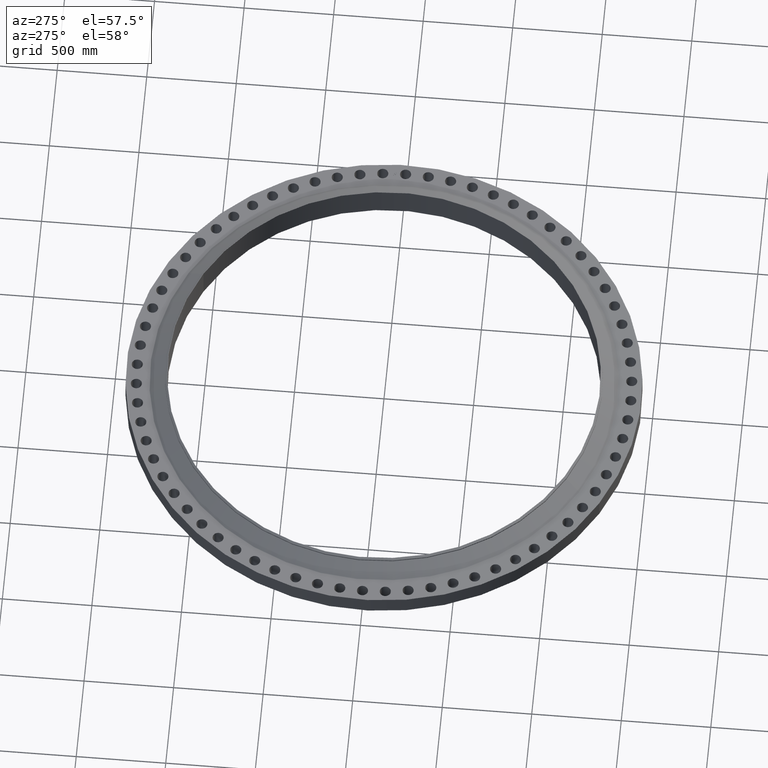
[diagram: clean part render]
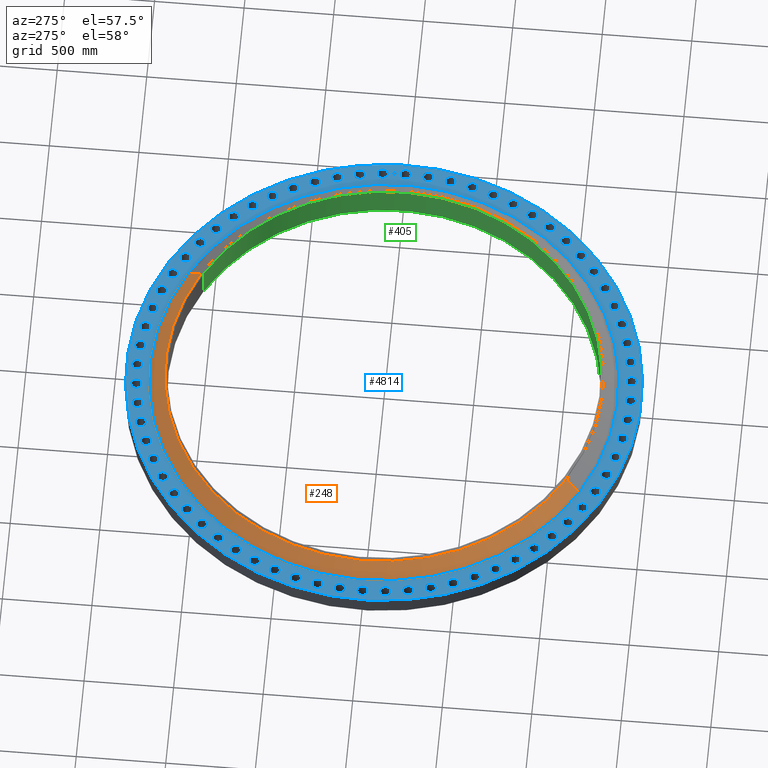
[diagram: same view with three faces highlighted in distinct colors, each labeled with its STEP entity id]
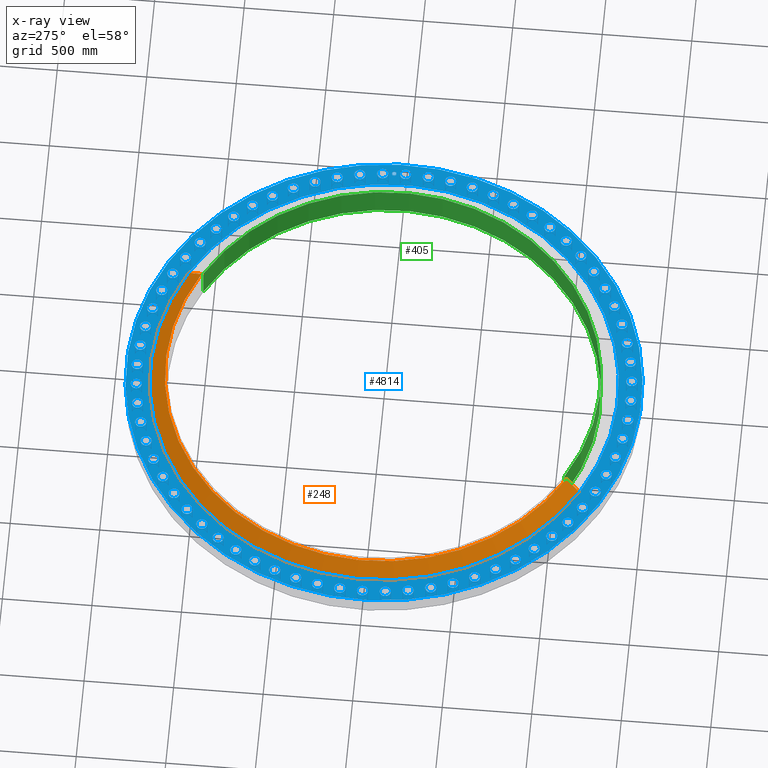
[diagram: x-ray of the same camera — body ghosted, the three highlighted faces saturated]
A machine part, auxiliary view with three faces highlighted in distinct colors.
The next image is the same camera in x-ray (body ghosted, the three faces saturated) — at least one of them is partly hidden behind the body in this view.
Their STEP definitions:

[orange] entity #248 — the highlighted conical surface has half-angle 54.268 deg.
#196=AXIS2_PLACEMENT_3D('Circle Axis2P3D',#194,#195,$) ;
#209=AXIS2_PLACEMENT_3D('Cone Axis2P3D',#206,#207,#208) ;
#239=AXIS2_PLACEMENT_3D('Circle Axis2P3D',#237,#238,$) ;
#167=CARTESIAN_POINT('Vertex',(24.5991253952,45.0283970009,4.29706151286)) ;
#174=CARTESIAN_POINT('Vertex',(-24.5991253952,-45.0283970009,4.29706151286)) ;
#194=CARTESIAN_POINT('Axis2P3D Location',(0.,0.,4.29706151286)) ;
#206=CARTESIAN_POINT('Axis2P3D Location',(0.,0.,6.67807397035)) ;
#211=CARTESIAN_POINT('Line Origine',(23.8057756242,43.5761799859,5.4875677416)) ;
#215=CARTESIAN_POINT('Vertex',(23.0124258531,42.1239629709,6.67807397035)) ;
#222=CARTESIAN_POINT('Vertex',(-23.0124258531,-42.1239629709,6.67807397035)) ;
#225=CARTESIAN_POINT('Line Origine',(-23.8057756242,-43.5761799859,5.4875677416)) ;
#237=CARTESIAN_POINT('Axis2P3D Location',(0.,0.,6.67807397035)) ;
#195=DIRECTION('Axis2P3D Direction',(0.,0.,-0.0393700787402)) ;
#207=DIRECTION('Axis2P3D Direction',(0.,0.,-0.0393700787402)) ;
#208=DIRECTION('Axis2P3D XDirection',(-0.0188750212049,-0.0345504945626,0.)) ;
#212=DIRECTION('Vector Direction',(0.0153218729934,0.028046500388,-0.0229921100373)) ;
#226=DIRECTION('Vector Direction',(-0.0153218729934,-0.028046500388,-0.0229921100373)) ;
#238=DIRECTION('Axis2P3D Direction',(0.,0.,-0.0393700787402)) ;
#213=VECTOR('Line Direction',#212,0.0393700787402) ;
#227=VECTOR('Line Direction',#226,0.0393700787402) ;
#243=ORIENTED_EDGE('',*,*,#198,.F.) ;
#244=ORIENTED_EDGE('',*,*,#229,.T.) ;
#245=ORIENTED_EDGE('',*,*,#241,.T.) ;
#246=ORIENTED_EDGE('',*,*,#217,.F.) ;
#248=ADVANCED_FACE('PartBody',(#247),#210,.T.) ;
#197=CIRCLE('generated circle',#196,51.3095849396) ;
#240=CIRCLE('generated circle',#239,48.0000000002) ;
#210=CONICAL_SURFACE('Cone',#209,48.0000000002,0.947149215535) ;
#198=EDGE_CURVE('',#175,#168,#197,.T.) ;
#217=EDGE_CURVE('',#168,#216,#214,.F.) ;
#229=EDGE_CURVE('',#175,#223,#228,.F.) ;
#241=EDGE_CURVE('',#223,#216,#240,.T.) ;
#242=EDGE_LOOP('',(#243,#244,#245,#246)) ;
#247=FACE_OUTER_BOUND('',#242,.T.) ;
#214=LINE('Line',#211,#213) ;
#228=LINE('Line',#225,#227) ;
#168=VERTEX_POINT('',#167) ;
#175=VERTEX_POINT('',#174) ;
#216=VERTEX_POINT('',#215) ;
#223=VERTEX_POINT('',#222) ;

[blue] entity #4814 — the highlighted planar face has unit normal (0, 0, -1).
#65=AXIS2_PLACEMENT_3D('Circle Axis2P3D',#63,#64,$) ;
#82=AXIS2_PLACEMENT_3D('Circle Axis2P3D',#80,#81,$) ;
#115=AXIS2_PLACEMENT_3D('Circle Axis2P3D',#113,#114,$) ;
#139=AXIS2_PLACEMENT_3D('Circle Axis2P3D',#137,#138,$) ;
#156=AXIS2_PLACEMENT_3D('Circle Axis2P3D',#154,#155,$) ;
#191=AXIS2_PLACEMENT_3D('Circle Axis2P3D',#189,#190,$) ;
#1651=AXIS2_PLACEMENT_3D('Circle Axis2P3D',#1649,#1650,$) ;
#1663=AXIS2_PLACEMENT_3D('Circle Axis2P3D',#1661,#1662,$) ;
#1694=AXIS2_PLACEMENT_3D('Circle Axis2P3D',#1692,#1693,$) ;
#1706=AXIS2_PLACEMENT_3D('Circle Axis2P3D',#1704,#1705,$) ;
#1737=AXIS2_PLACEMENT_3D('Circle Axis2P3D',#1735,#1736,$) ;
#1749=AXIS2_PLACEMENT_3D('Circle Axis2P3D',#1747,#1748,$) ;
#1780=AXIS2_PLACEMENT_3D('Circle Axis2P3D',#1778,#1779,$) ;
#1792=AXIS2_PLACEMENT_3D('Circle Axis2P3D',#1790,#1791,$) ;
#1823=AXIS2_PLACEMENT_3D('Circle Axis2P3D',#1821,#1822,$) ;
#1835=AXIS2_PLACEMENT_3D('Circle Axis2P3D',#1833,#1834,$) ;
#1866=AXIS2_PLACEMENT_3D('Circle Axis2P3D',#1864,#1865,$) ;
#1878=AXIS2_PLACEMENT_3D('Circle Axis2P3D',#1876,#1877,$) ;
#1909=AXIS2_PLACEMENT_3D('Circle Axis2P3D',#1907,#1908,$) ;
#1921=AXIS2_PLACEMENT_3D('Circle Axis2P3D',#1919,#1920,$) ;
#1952=AXIS2_PLACEMENT_3D('Circle Axis2P3D',#1950,#1951,$) ;
#1964=AXIS2_PLACEMENT_3D('Circle Axis2P3D',#1962,#1963,$) ;
#1995=AXIS2_PLACEMENT_3D('Circle Axis2P3D',#1993,#1994,$) ;
#2007=AXIS2_PLACEMENT_3D('Circle Axis2P3D',#2005,#2006,$) ;
#2038=AXIS2_PLACEMENT_3D('Circle Axis2P3D',#2036,#2037,$) ;
#2050=AXIS2_PLACEMENT_3D('Circle Axis2P3D',#2048,#2049,$) ;
#2081=AXIS2_PLACEMENT_3D('Circle Axis2P3D',#2079,#2080,$) ;
#2093=AXIS2_PLACEMENT_3D('Circle Axis2P3D',#2091,#2092,$) ;
#2124=AXIS2_PLACEMENT_3D('Circle Axis2P3D',#2122,#2123,$) ;
#2136=AXIS2_PLACEMENT_3D('Circle Axis2P3D',#2134,#2135,$) ;
#2167=AXIS2_PLACEMENT_3D('Circle Axis2P3D',#2165,#2166,$) ;
#2179=AXIS2_PLACEMENT_3D('Circle Axis2P3D',#2177,#2178,$) ;
#2210=AXIS2_PLACEMENT_3D('Circle Axis2P3D',#2208,#2209,$) ;
#2222=AXIS2_PLACEMENT_3D('Circle Axis2P3D',#2220,#2221,$) ;
#2253=AXIS2_PLACEMENT_3D('Circle Axis2P3D',#2251,#2252,$) ;
#2265=AXIS2_PLACEMENT_3D('Circle Axis2P3D',#2263,#2264,$) ;
#2296=AXIS2_PLACEMENT_3D('Circle Axis2P3D',#2294,#2295,$) ;
#2308=AXIS2_PLACEMENT_3D('Circle Axis2P3D',#2306,#2307,$) ;
#2339=AXIS2_PLACEMENT_3D('Circle Axis2P3D',#2337,#2338,$) ;
#2351=AXIS2_PLACEMENT_3D('Circle Axis2P3D',#2349,#2350,$) ;
#2382=AXIS2_PLACEMENT_3D('Circle Axis2P3D',#2380,#2381,$) ;
#2394=AXIS2_PLACEMENT_3D('Circle Axis2P3D',#2392,#2393,$) ;
#2425=AXIS2_PLACEMENT_3D('Circle Axis2P3D',#2423,#2424,$) ;
#2437=AXIS2_PLACEMENT_3D('Circle Axis2P3D',#2435,#2436,$) ;
#2468=AXIS2_PLACEMENT_3D('Circle Axis2P3D',#2466,#2467,$) ;
#2480=AXIS2_PLACEMENT_3D('Circle Axis2P3D',#2478,#2479,$) ;
#2511=AXIS2_PLACEMENT_3D('Circle Axis2P3D',#2509,#2510,$) ;
#2523=AXIS2_PLACEMENT_3D('Circle Axis2P3D',#2521,#2522,$) ;
#2554=AXIS2_PLACEMENT_3D('Circle Axis2P3D',#2552,#2553,$) ;
#2566=AXIS2_PLACEMENT_3D('Circle Axis2P3D',#2564,#2565,$) ;
#2597=AXIS2_PLACEMENT_3D('Circle Axis2P3D',#2595,#2596,$) ;
#2609=AXIS2_PLACEMENT_3D('Circle Axis2P3D',#2607,#2608,$) ;
#2640=AXIS2_PLACEMENT_3D('Circle Axis2P3D',#2638,#2639,$) ;
#2652=AXIS2_PLACEMENT_3D('Circle Axis2P3D',#2650,#2651,$) ;
#2683=AXIS2_PLACEMENT_3D('Circle Axis2P3D',#2681,#2682,$) ;
#2695=AXIS2_PLACEMENT_3D('Circle Axis2P3D',#2693,#2694,$) ;
#2726=AXIS2_PLACEMENT_3D('Circle Axis2P3D',#2724,#2725,$) ;
#2738=AXIS2_PLACEMENT_3D('Circle Axis2P3D',#2736,#2737,$) ;
#2769=AXIS2_PLACEMENT_3D('Circle Axis2P3D',#2767,#2768,$) ;
#2781=AXIS2_PLACEMENT_3D('Circle Axis2P3D',#2779,#2780,$) ;
#2812=AXIS2_PLACEMENT_3D('Circle Axis2P3D',#2810,#2811,$) ;
#2824=AXIS2_PLACEMENT_3D('Circle Axis2P3D',#2822,#2823,$) ;
#2855=AXIS2_PLACEMENT_3D('Circle Axis2P3D',#2853,#2854,$) ;
#2867=AXIS2_PLACEMENT_3D('Circle Axis2P3D',#2865,#2866,$) ;
#2898=AXIS2_PLACEMENT_3D('Circle Axis2P3D',#2896,#2897,$) ;
#2910=AXIS2_PLACEMENT_3D('Circle Axis2P3D',#2908,#2909,$) ;
#2941=AXIS2_PLACEMENT_3D('Circle Axis2P3D',#2939,#2940,$) ;
#2953=AXIS2_PLACEMENT_3D('Circle Axis2P3D',#2951,#2952,$) ;
#2984=AXIS2_PLACEMENT_3D('Circle Axis2P3D',#2982,#2983,$) ;
#2996=AXIS2_PLACEMENT_3D('Circle Axis2P3D',#2994,#2995,$) ;
#3027=AXIS2_PLACEMENT_3D('Circle Axis2P3D',#3025,#3026,$) ;
#3039=AXIS2_PLACEMENT_3D('Circle Axis2P3D',#3037,#3038,$) ;
#3070=AXIS2_PLACEMENT_3D('Circle Axis2P3D',#3068,#3069,$) ;
#3082=AXIS2_PLACEMENT_3D('Circle Axis2P3D',#3080,#3081,$) ;
#3113=AXIS2_PLACEMENT_3D('Circle Axis2P3D',#3111,#3112,$) ;
#3125=AXIS2_PLACEMENT_3D('Circle Axis2P3D',#3123,#3124,$) ;
#3156=AXIS2_PLACEMENT_3D('Circle Axis2P3D',#3154,#3155,$) ;
#3168=AXIS2_PLACEMENT_3D('Circle Axis2P3D',#3166,#3167,$) ;
#3199=AXIS2_PLACEMENT_3D('Circle Axis2P3D',#3197,#3198,$) ;
#3211=AXIS2_PLACEMENT_3D('Circle Axis2P3D',#3209,#3210,$) ;
#3242=AXIS2_PLACEMENT_3D('Circle Axis2P3D',#3240,#3241,$) ;
#3254=AXIS2_PLACEMENT_3D('Circle Axis2P3D',#3252,#3253,$) ;
#3285=AXIS2_PLACEMENT_3D('Circle Axis2P3D',#3283,#3284,$) ;
#3297=AXIS2_PLACEMENT_3D('Circle Axis2P3D',#3295,#3296,$) ;
#3328=AXIS2_PLACEMENT_3D('Circle Axis2P3D',#3326,#3327,$) ;
#3340=AXIS2_PLACEMENT_3D('Circle Axis2P3D',#3338,#3339,$) ;
#3371=AXIS2_PLACEMENT_3D('Circle Axis2P3D',#3369,#3370,$) ;
#3383=AXIS2_PLACEMENT_3D('Circle Axis2P3D',#3381,#3382,$) ;
#3414=AXIS2_PLACEMENT_3D('Circle Axis2P3D',#3412,#3413,$) ;
#3426=AXIS2_PLACEMENT_3D('Circle Axis2P3D',#3424,#3425,$) ;
#3457=AXIS2_PLACEMENT_3D('Circle Axis2P3D',#3455,#3456,$) ;
#3469=AXIS2_PLACEMENT_3D('Circle Axis2P3D',#3467,#3468,$) ;
#3500=AXIS2_PLACEMENT_3D('Circle Axis2P3D',#3498,#3499,$) ;
#3512=AXIS2_PLACEMENT_3D('Circle Axis2P3D',#3510,#3511,$) ;
#3543=AXIS2_PLACEMENT_3D('Circle Axis2P3D',#3541,#3542,$) ;
#3555=AXIS2_PLACEMENT_3D('Circle Axis2P3D',#3553,#3554,$) ;
#3586=AXIS2_PLACEMENT_3D('Circle Axis2P3D',#3584,#3585,$) ;
#3598=AXIS2_PLACEMENT_3D('Circle Axis2P3D',#3596,#3597,$) ;
#3629=AXIS2_PLACEMENT_3D('Circle Axis2P3D',#3627,#3628,$) ;
#3641=AXIS2_PLACEMENT_3D('Circle Axis2P3D',#3639,#3640,$) ;
#3672=AXIS2_PLACEMENT_3D('Circle Axis2P3D',#3670,#3671,$) ;
#3684=AXIS2_PLACEMENT_3D('Circle Axis2P3D',#3682,#3683,$) ;
#3715=AXIS2_PLACEMENT_3D('Circle Axis2P3D',#3713,#3714,$) ;
#3727=AXIS2_PLACEMENT_3D('Circle Axis2P3D',#3725,#3726,$) ;
#3758=AXIS2_PLACEMENT_3D('Circle Axis2P3D',#3756,#3757,$) ;
#3770=AXIS2_PLACEMENT_3D('Circle Axis2P3D',#3768,#3769,$) ;
#3801=AXIS2_PLACEMENT_3D('Circle Axis2P3D',#3799,#3800,$) ;
#3813=AXIS2_PLACEMENT_3D('Circle Axis2P3D',#3811,#3812,$) ;
#3844=AXIS2_PLACEMENT_3D('Circle Axis2P3D',#3842,#3843,$) ;
#3856=AXIS2_PLACEMENT_3D('Circle Axis2P3D',#3854,#3855,$) ;
#3887=AXIS2_PLACEMENT_3D('Circle Axis2P3D',#3885,#3886,$) ;
#3899=AXIS2_PLACEMENT_3D('Circle Axis2P3D',#3897,#3898,$) ;
#3930=AXIS2_PLACEMENT_3D('Circle Axis2P3D',#3928,#3929,$) ;
#3942=AXIS2_PLACEMENT_3D('Circle Axis2P3D',#3940,#3941,$) ;
#3973=AXIS2_PLACEMENT_3D('Circle Axis2P3D',#3971,#3972,$) ;
#3985=AXIS2_PLACEMENT_3D('Circle Axis2P3D',#3983,#3984,$) ;
#4016=AXIS2_PLACEMENT_3D('Circle Axis2P3D',#4014,#4015,$) ;
#4028=AXIS2_PLACEMENT_3D('Circle Axis2P3D',#4026,#4027,$) ;
#4059=AXIS2_PLACEMENT_3D('Circle Axis2P3D',#4057,#4058,$) ;
#4071=AXIS2_PLACEMENT_3D('Circle Axis2P3D',#4069,#4070,$) ;
#4102=AXIS2_PLACEMENT_3D('Circle Axis2P3D',#4100,#4101,$) ;
#4114=AXIS2_PLACEMENT_3D('Circle Axis2P3D',#4112,#4113,$) ;
#4145=AXIS2_PLACEMENT_3D('Circle Axis2P3D',#4143,#4144,$) ;
#4157=AXIS2_PLACEMENT_3D('Circle Axis2P3D',#4155,#4156,$) ;
#4188=AXIS2_PLACEMENT_3D('Circle Axis2P3D',#4186,#4187,$) ;
#4200=AXIS2_PLACEMENT_3D('Circle Axis2P3D',#4198,#4199,$) ;
#4231=AXIS2_PLACEMENT_3D('Circle Axis2P3D',#4229,#4230,$) ;
#4243=AXIS2_PLACEMENT_3D('Circle Axis2P3D',#4241,#4242,$) ;
#4274=AXIS2_PLACEMENT_3D('Circle Axis2P3D',#4272,#4273,$) ;
#4286=AXIS2_PLACEMENT_3D('Circle Axis2P3D',#4284,#4285,$) ;
#4317=AXIS2_PLACEMENT_3D('Circle Axis2P3D',#4315,#4316,$) ;
#4329=AXIS2_PLACEMENT_3D('Circle Axis2P3D',#4327,#4328,$) ;
#4360=AXIS2_PLACEMENT_3D('Circle Axis2P3D',#4358,#4359,$) ;
#4372=AXIS2_PLACEMENT_3D('Circle Axis2P3D',#4370,#4371,$) ;
#4403=AXIS2_PLACEMENT_3D('Circle Axis2P3D',#4401,#4402,$) ;
#4415=AXIS2_PLACEMENT_3D('Circle Axis2P3D',#4413,#4414,$) ;
#4446=AXIS2_PLACEMENT_3D('Circle Axis2P3D',#4444,#4445,$) ;
#4458=AXIS2_PLACEMENT_3D('Circle Axis2P3D',#4456,#4457,$) ;
#4489=AXIS2_PLACEMENT_3D('Circle Axis2P3D',#4487,#4488,$) ;
#4501=AXIS2_PLACEMENT_3D('Circle Axis2P3D',#4499,#4500,$) ;
#4514=AXIS2_PLACEMENT_3D('Plane Axis2P3D',#4511,#4512,#4513) ;
#4798=AXIS2_PLACEMENT_3D('Circle Axis2P3D',#4796,#4797,$) ;
#4807=AXIS2_PLACEMENT_3D('Circle Axis2P3D',#4805,#4806,$) ;
#46=CARTESIAN_POINT('Vertex',(53.1793492747,0.584899157099,4.25000000002)) ;
#60=CARTESIAN_POINT('Vertex',(55.3206507257,-0.584899157099,4.25000000002)) ;
#63=CARTESIAN_POINT('Axis2P3D Location',(54.2500000002,0.,4.25000000002)) ;
#80=CARTESIAN_POINT('Axis2P3D Location',(54.2500000002,0.,4.25000000002)) ;
#110=CARTESIAN_POINT('Vertex',(-27.1474711236,-49.6931125672,4.25000000002)) ;
#113=CARTESIAN_POINT('Axis2P3D Location',(0.,0.,4.25000000002)) ;
#117=CARTESIAN_POINT('Vertex',(27.1474711236,49.6931125672,4.25000000002)) ;
#137=CARTESIAN_POINT('Axis2P3D Location',(0.,0.,4.25000000002)) ;
#154=CARTESIAN_POINT('Axis2P3D Location',(0.,0.,4.25000000002)) ;
#158=CARTESIAN_POINT('Vertex',(24.6691214753,45.156523966,4.25000000002)) ;
#160=CARTESIAN_POINT('Vertex',(-24.6691214753,-45.156523966,4.25000000002)) ;
#189=CARTESIAN_POINT('Axis2P3D Location',(0.,0.,4.25000000002)) ;
#1639=CARTESIAN_POINT('Vertex',(-53.0064632316,4.32436723449,4.25000000002)) ;
#1646=CARTESIAN_POINT('Vertex',(-55.0306948968,5.68674976732,4.25000000002)) ;
#1649=CARTESIAN_POINT('Axis2P3D Location',(-54.0185790642,5.0055585009,4.25000000002)) ;
#1661=CARTESIAN_POINT('Axis2P3D Location',(-54.0185790642,5.0055585009,4.25000000002)) ;
#1682=CARTESIAN_POINT('Vertex',(52.3813447338,-9.19673964957,4.25000000002)) ;
#1689=CARTESIAN_POINT('Vertex',(54.2712365823,-10.7400830336,4.25000000002)) ;
#1692=CARTESIAN_POINT('Axis2P3D Location',(53.3262906581,-9.96841134159,4.25000000002)) ;
#1704=CARTESIAN_POINT('Axis2P3D Location',(53.3262906581,-9.96841134159,4.25000000002)) ;
#1725=CARTESIAN_POINT('Vertex',(-52.3813447338,9.19673964957,4.25000000002)) ;
#1732=CARTESIAN_POINT('Vertex',(-54.2712365823,10.7400830336,4.25000000002)) ;
#1735=CARTESIAN_POINT('Axis2P3D Location',(-53.3262906581,9.96841134159,4.25000000002)) ;
#1747=CARTESIAN_POINT('Axis2P3D Location',(-53.3262906581,9.96841134159,4.25000000002)) ;
#1768=CARTESIAN_POINT('Vertex',(51.3093270719,-13.9906487246,4.25000000002)) ;
#1775=CARTESIAN_POINT('Vertex',(53.0487552128,-15.7017856983,4.25000000002)) ;
#1778=CARTESIAN_POINT('Axis2P3D Location',(52.1790411423,-14.8462172115,4.25000000002)) ;
#1790=CARTESIAN_POINT('Axis2P3D Location',(52.1790411423,-14.8462172115,4.25000000002)) ;
#1811=CARTESIAN_POINT('Vertex',(-51.3093270719,13.9906487246,4.25000000002)) ;
#1818=CARTESIAN_POINT('Vertex',(-53.0487552128,15.7017856983,4.25000000002)) ;
#1821=CARTESIAN_POINT('Axis2P3D Location',(-52.1790411423,14.8462172115,4.25000000002)) ;
#1833=CARTESIAN_POINT('Axis2P3D Location',(-52.1790411423,14.8462172115,4.25000000002)) ;
#1854=CARTESIAN_POINT('Vertex',(49.7995563225,-18.6651945177,4.25000000002)) ;
#1861=CARTESIAN_POINT('Vertex',(51.3736805683,-20.5295262637,4.25000000002)) ;
#1864=CARTESIAN_POINT('Axis2P3D Location',(50.5866184454,-19.5973603907,4.25000000002)) ;
#1876=CARTESIAN_POINT('Axis2P3D Location',(50.5866184454,-19.5973603907,4.25000000002)) ;
#1897=CARTESIAN_POINT('Vertex',(-49.7995563225,18.6651945177,4.25000000002)) ;
#1904=CARTESIAN_POINT('Vertex',(-51.3736805683,20.5295262637,4.25000000002)) ;
#1907=CARTESIAN_POINT('Axis2P3D Location',(-50.5866184454,19.5973603907,4.25000000002)) ;
#1919=CARTESIAN_POINT('Axis2P3D Location',(-50.5866184454,19.5973603907,4.25000000002)) ;
#1940=CARTESIAN_POINT('Vertex',(47.8649133174,-23.1804954524,4.25000000002)) ;
#1947=CARTESIAN_POINT('Vertex',(49.260303795,-25.1821161496,4.25000000002)) ;
#1950=CARTESIAN_POINT('Axis2P3D Location',(48.5626085562,-24.181305801,4.25000000002)) ;
#1962=CARTESIAN_POINT('Axis2P3D Location',(48.5626085562,-24.181305801,4.25000000002)) ;
#1983=CARTESIAN_POINT('Vertex',(-47.8649133174,23.1804954524,4.25000000002)) ;
#1990=CARTESIAN_POINT('Vertex',(-49.260303795,25.1821161496,4.25000000002)) ;
#1993=CARTESIAN_POINT('Axis2P3D Location',(-48.5626085562,24.181305801,4.25000000002)) ;
#2005=CARTESIAN_POINT('Axis2P3D Location',(-48.5626085562,24.181305801,4.25000000002)) ;
#2026=CARTESIAN_POINT('Vertex',(45.5219037486,-27.4980285731,4.25000000002)) ;
#2033=CARTESIAN_POINT('Vertex',(46.7266554784,-29.6198610994,4.25000000002)) ;
#2036=CARTESIAN_POINT('Axis2P3D Location',(46.1242796135,-28.5589448362,4.25000000002)) ;
#2048=CARTESIAN_POINT('Axis2P3D Location',(46.1242796135,-28.5589448362,4.25000000002)) ;
#2069=CARTESIAN_POINT('Vertex',(-45.5219037486,27.4980285731,4.25000000002)) ;
#2076=CARTESIAN_POINT('Vertex',(-46.7266554784,29.6198610994,4.25000000002)) ;
#2079=CARTESIAN_POINT('Axis2P3D Location',(-46.1242796135,28.5589448362,4.25000000002)) ;
#2091=CARTESIAN_POINT('Axis2P3D Location',(-46.1242796135,28.5589448362,4.25000000002)) ;
#2112=CARTESIAN_POINT('Vertex',(42.7905173476,-31.5809582095,4.25000000002)) ;
#2119=CARTESIAN_POINT('Vertex',(43.7943518126,-33.8048998379,4.25000000002)) ;
#2122=CARTESIAN_POINT('Axis2P3D Location',(43.2924345801,-32.6929290237,4.25000000002)) ;
#2134=CARTESIAN_POINT('Axis2P3D Location',(43.2924345801,-32.6929290237,4.25000000002)) ;
#2155=CARTESIAN_POINT('Vertex',(-42.7905173476,31.5809582095,4.25000000002)) ;
#2162=CARTESIAN_POINT('Vertex',(-43.7943518126,33.8048998379,4.25000000002)) ;
#2165=CARTESIAN_POINT('Axis2P3D Location',(-43.2924345801,32.6929290237,4.25000000002)) ;
#2177=CARTESIAN_POINT('Axis2P3D Location',(-43.2924345801,32.6929290237,4.25000000002)) ;
#2198=CARTESIAN_POINT('Vertex',(39.6940573401,-35.3944502456,4.25000000002)) ;
#2205=CARTESIAN_POINT('Vertex',(40.4884101787,-37.7015270904,4.25000000002)) ;
#2208=CARTESIAN_POINT('Axis2P3D Location',(40.0912337594,-36.547988668,4.25000000002)) ;
#2220=CARTESIAN_POINT('Axis2P3D Location',(40.0912337594,-36.547988668,4.25000000002)) ;
#2241=CARTESIAN_POINT('Vertex',(-39.6940573401,35.3944502456,4.25000000002)) ;
#2248=CARTESIAN_POINT('Vertex',(-40.4884101787,37.7015270904,4.25000000002)) ;
#2251=CARTESIAN_POINT('Axis2P3D Location',(-40.0912337594,36.547988668,4.25000000002)) ;
#2263=CARTESIAN_POINT('Axis2P3D Location',(-40.0912337594,36.547988668,4.25000000002)) ;
#2284=CARTESIAN_POINT('Vertex',(36.2589416311,-38.9059693119,4.25000000002)) ;
#2291=CARTESIAN_POINT('Vertex',(36.8370357048,-41.2764982069,4.25000000002)) ;
#2294=CARTESIAN_POINT('Axis2P3D Location',(36.547988668,-40.0912337594,4.25000000002)) ;
#2306=CARTESIAN_POINT('Axis2P3D Location',(36.547988668,-40.0912337594,4.25000000002)) ;
#2327=CARTESIAN_POINT('Vertex',(-36.2589416311,38.9059693119,4.25000000002)) ;
#2334=CARTESIAN_POINT('Vertex',(-36.8370357048,41.2764982069,4.25000000002)) ;
#2337=CARTESIAN_POINT('Axis2P3D Location',(-36.547988668,40.0912337594,4.25000000002)) ;
#2349=CARTESIAN_POINT('Axis2P3D Location',(-36.547988668,40.0912337594,4.25000000002)) ;
#2370=CARTESIAN_POINT('Vertex',(32.5144774166,-42.0855563659,4.25000000002)) ;
#2377=CARTESIAN_POINT('Vertex',(32.8713806308,-44.4993127943,4.25000000002)) ;
#2380=CARTESIAN_POINT('Axis2P3D Location',(32.6929290237,-43.2924345801,4.25000000002)) ;
#2392=CARTESIAN_POINT('Axis2P3D Location',(32.6929290237,-43.2924345801,4.25000000002)) ;
#2413=CARTESIAN_POINT('Vertex',(-32.5144774166,42.0855563659,4.25000000002)) ;
#2420=CARTESIAN_POINT('Vertex',(-32.8713806308,44.4993127943,4.25000000002)) ;
#2423=CARTESIAN_POINT('Axis2P3D Location',(-32.6929290237,43.2924345801,4.25000000002)) ;
#2435=CARTESIAN_POINT('Axis2P3D Location',(-32.6929290237,43.2924345801,4.25000000002)) ;
#2456=CARTESIAN_POINT('Vertex',(28.4926111451,-44.906084292,4.25000000002)) ;
#2463=CARTESIAN_POINT('Vertex',(28.6252785273,-47.3424749351,4.25000000002)) ;
#2466=CARTESIAN_POINT('Axis2P3D Location',(28.5589448362,-46.1242796135,4.25000000002)) ;
#2478=CARTESIAN_POINT('Axis2P3D Location',(28.5589448362,-46.1242796135,4.25000000002)) ;
#2499=CARTESIAN_POINT('Vertex',(-28.4926111451,44.906084292,4.25000000002)) ;
#2506=CARTESIAN_POINT('Vertex',(-28.6252785273,47.3424749351,4.25000000002)) ;
#2509=CARTESIAN_POINT('Axis2P3D Location',(-28.5589448362,46.1242796135,4.25000000002)) ;
#2521=CARTESIAN_POINT('Axis2P3D Location',(-28.5589448362,46.1242796135,4.25000000002)) ;
#2542=CARTESIAN_POINT('Vertex',(24.2276559616,-47.3434893403,4.25000000002)) ;
#2549=CARTESIAN_POINT('Vertex',(24.1349556404,-49.7817277721,4.25000000002)) ;
#2552=CARTESIAN_POINT('Axis2P3D Location',(24.181305801,-48.5626085562,4.25000000002)) ;
#2564=CARTESIAN_POINT('Axis2P3D Location',(24.181305801,-48.5626085562,4.25000000002)) ;
#2585=CARTESIAN_POINT('Vertex',(-24.2276559616,47.3434893403,4.25000000002)) ;
#2592=CARTESIAN_POINT('Vertex',(-24.1349556404,49.7817277721,4.25000000002)) ;
#2595=CARTESIAN_POINT('Axis2P3D Location',(-24.181305801,48.5626085562,4.25000000002)) ;
#2607=CARTESIAN_POINT('Axis2P3D Location',(-24.181305801,48.5626085562,4.25000000002)) ;
#2628=CARTESIAN_POINT('Vertex',(19.7559989597,-49.3769764304,4.25000000002)) ;
#2635=CARTESIAN_POINT('Vertex',(19.4387218217,-51.7962604604,4.25000000002)) ;
#2638=CARTESIAN_POINT('Axis2P3D Location',(19.5973603907,-50.5866184454,4.25000000002)) ;
#2650=CARTESIAN_POINT('Axis2P3D Location',(19.5973603907,-50.5866184454,4.25000000002)) ;
#2671=CARTESIAN_POINT('Vertex',(-19.7559989597,49.3769764304,4.25000000002)) ;
#2678=CARTESIAN_POINT('Vertex',(-19.4387218217,51.7962604604,4.25000000002)) ;
#2681=CARTESIAN_POINT('Axis2P3D Location',(-19.5973603907,50.5866184454,4.25000000002)) ;
#2693=CARTESIAN_POINT('Axis2P3D Location',(-19.5973603907,50.5866184454,4.25000000002)) ;
#2714=CARTESIAN_POINT('Vertex',(15.1157907406,-50.9891965674,4.25000000002)) ;
#2721=CARTESIAN_POINT('Vertex',(14.5766436824,-53.3688857172,4.25000000002)) ;
#2724=CARTESIAN_POINT('Axis2P3D Location',(14.8462172115,-52.1790411423,4.25000000002)) ;
#2736=CARTESIAN_POINT('Axis2P3D Location',(14.8462172115,-52.1790411423,4.25000000002)) ;
#2757=CARTESIAN_POINT('Vertex',(-15.1157907406,50.9891965674,4.25000000002)) ;
#2764=CARTESIAN_POINT('Vertex',(-14.5766436824,53.3688857172,4.25000000002)) ;
#2767=CARTESIAN_POINT('Axis2P3D Location',(-14.8462172115,52.1790411423,4.25000000002)) ;
#2779=CARTESIAN_POINT('Axis2P3D Location',(-14.8462172115,52.1790411423,4.25000000002)) ;
#2800=CARTESIAN_POINT('Vertex',(10.3466199245,-52.1663948576,4.25000000002)) ;
#2807=CARTESIAN_POINT('Vertex',(9.59020275869,-54.4861864585,4.25000000002)) ;
#2810=CARTESIAN_POINT('Axis2P3D Location',(9.96841134159,-53.3262906581,4.25000000002)) ;
#2822=CARTESIAN_POINT('Axis2P3D Location',(9.96841134159,-53.3262906581,4.25000000002)) ;
#2843=CARTESIAN_POINT('Vertex',(-10.3466199245,52.1663948576,4.25000000002)) ;
#2850=CARTESIAN_POINT('Vertex',(-9.59020275869,54.4861864585,4.25000000002)) ;
#2853=CARTESIAN_POINT('Axis2P3D Location',(-9.96841134159,53.3262906581,4.25000000002)) ;
#2865=CARTESIAN_POINT('Axis2P3D Location',(-9.96841134159,53.3262906581,4.25000000002)) ;
#2886=CARTESIAN_POINT('Vertex',(5.48917539531,-52.8985278603,4.25000000002)) ;
#2893=CARTESIAN_POINT('Vertex',(4.5219416065,-55.1386302682,4.25000000002)) ;
#2896=CARTESIAN_POINT('Axis2P3D Location',(5.0055585009,-54.0185790642,4.25000000002)) ;
#2908=CARTESIAN_POINT('Axis2P3D Location',(5.0055585009,-54.0185790642,4.25000000002)) ;
#2929=CARTESIAN_POINT('Vertex',(-5.48917539531,52.8985278603,4.25000000002)) ;
#2936=CARTESIAN_POINT('Vertex',(-4.5219416065,55.1386302682,4.25000000002)) ;
#2939=CARTESIAN_POINT('Axis2P3D Location',(-5.0055585009,54.0185790642,4.25000000002)) ;
#2951=CARTESIAN_POINT('Axis2P3D Location',(-5.0055585009,54.0185790642,4.25000000002)) ;
#2972=CARTESIAN_POINT('Vertex',(0.584899157099,-53.1793492747,4.25000000002)) ;
#2979=CARTESIAN_POINT('Vertex',(-0.584899157099,-55.3206507257,4.25000000002)) ;
#2982=CARTESIAN_POINT('Axis2P3D Location',(-5.62986506294E-015,-54.2500000002,4.25000000002)) ;
#2994=CARTESIAN_POINT('Axis2P3D Location',(-5.62986506294E-015,-54.2500000002,4.25000000002)) ;
#3015=CARTESIAN_POINT('Vertex',(-0.584899157099,53.1793492747,4.25000000002)) ;
#3022=CARTESIAN_POINT('Vertex',(0.584899157099,55.3206507257,4.25000000002)) ;
#3025=CARTESIAN_POINT('Axis2P3D Location',(-9.9655633281E-015,54.2500000002,4.25000000002)) ;
#3037=CARTESIAN_POINT('Axis2P3D Location',(-9.9655633281E-015,54.2500000002,4.25000000002)) ;
#3058=CARTESIAN_POINT('Vertex',(-4.32436723449,-53.0064632316,4.25000000002)) ;
#3065=CARTESIAN_POINT('Vertex',(-5.68674976732,-55.0306948968,4.25000000002)) ;
#3068=CARTESIAN_POINT('Axis2P3D Location',(-5.0055585009,-54.0185790642,4.25000000002)) ;
#3080=CARTESIAN_POINT('Axis2P3D Location',(-5.0055585009,-54.0185790642,4.25000000002)) ;
#3101=CARTESIAN_POINT('Vertex',(4.32436723449,53.0064632316,4.25000000002)) ;
#3108=CARTESIAN_POINT('Vertex',(5.68674976732,55.0306948968,4.25000000002)) ;
#3111=CARTESIAN_POINT('Axis2P3D Location',(5.0055585009,54.0185790642,4.25000000002)) ;
#3123=CARTESIAN_POINT('Axis2P3D Location',(5.0055585009,54.0185790642,4.25000000002)) ;
#3144=CARTESIAN_POINT('Vertex',(-9.19673964957,-52.3813447338,4.25000000002)) ;
#3151=CARTESIAN_POINT('Vertex',(-10.7400830336,-54.2712365823,4.25000000002)) ;
#3154=CARTESIAN_POINT('Axis2P3D Location',(-9.96841134159,-53.3262906581,4.25000000002)) ;
#3166=CARTESIAN_POINT('Axis2P3D Location',(-9.96841134159,-53.3262906581,4.25000000002)) ;
#3187=CARTESIAN_POINT('Vertex',(9.19673964957,52.3813447338,4.25000000002)) ;
#3194=CARTESIAN_POINT('Vertex',(10.7400830336,54.2712365823,4.25000000002)) ;
#3197=CARTESIAN_POINT('Axis2P3D Location',(9.96841134159,53.3262906581,4.25000000002)) ;
#3209=CARTESIAN_POINT('Axis2P3D Location',(9.96841134159,53.3262906581,4.25000000002)) ;
#3230=CARTESIAN_POINT('Vertex',(-13.9906487246,-51.3093270719,4.25000000002)) ;
#3237=CARTESIAN_POINT('Vertex',(-15.7017856983,-53.0487552128,4.25000000002)) ;
#3240=CARTESIAN_POINT('Axis2P3D Location',(-14.8462172115,-52.1790411423,4.25000000002)) ;
#3252=CARTESIAN_POINT('Axis2P3D Location',(-14.8462172115,-52.1790411423,4.25000000002)) ;
#3273=CARTESIAN_POINT('Vertex',(13.9906487246,51.3093270719,4.25000000002)) ;
#3280=CARTESIAN_POINT('Vertex',(15.7017856983,53.0487552128,4.25000000002)) ;
#3283=CARTESIAN_POINT('Axis2P3D Location',(14.8462172115,52.1790411423,4.25000000002)) ;
#3295=CARTESIAN_POINT('Axis2P3D Location',(14.8462172115,52.1790411423,4.25000000002)) ;
#3316=CARTESIAN_POINT('Vertex',(-18.6651945177,-49.7995563225,4.25000000002)) ;
#3323=CARTESIAN_POINT('Vertex',(-20.5295262637,-51.3736805683,4.25000000002)) ;
#3326=CARTESIAN_POINT('Axis2P3D Location',(-19.5973603907,-50.5866184454,4.25000000002)) ;
#3338=CARTESIAN_POINT('Axis2P3D Location',(-19.5973603907,-50.5866184454,4.25000000002)) ;
#3359=CARTESIAN_POINT('Vertex',(18.6651945177,49.7995563225,4.25000000002)) ;
#3366=CARTESIAN_POINT('Vertex',(20.5295262637,51.3736805683,4.25000000002)) ;
#3369=CARTESIAN_POINT('Axis2P3D Location',(19.5973603907,50.5866184454,4.25000000002)) ;
#3381=CARTESIAN_POINT('Axis2P3D Location',(19.5973603907,50.5866184454,4.25000000002)) ;
#3402=CARTESIAN_POINT('Vertex',(-23.1804954524,-47.8649133174,4.25000000002)) ;
#3409=CARTESIAN_POINT('Vertex',(-25.1821161496,-49.260303795,4.25000000002)) ;
#3412=CARTESIAN_POINT('Axis2P3D Location',(-24.181305801,-48.5626085562,4.25000000002)) ;
#3424=CARTESIAN_POINT('Axis2P3D Location',(-24.181305801,-48.5626085562,4.25000000002)) ;
#3445=CARTESIAN_POINT('Vertex',(23.1804954524,47.8649133174,4.25000000002)) ;
#3452=CARTESIAN_POINT('Vertex',(25.1821161496,49.260303795,4.25000000002)) ;
#3455=CARTESIAN_POINT('Axis2P3D Location',(24.181305801,48.5626085562,4.25000000002)) ;
#3467=CARTESIAN_POINT('Axis2P3D Location',(24.181305801,48.5626085562,4.25000000002)) ;
#3488=CARTESIAN_POINT('Vertex',(-27.4980285731,-45.5219037486,4.25000000002)) ;
#3495=CARTESIAN_POINT('Vertex',(-29.6198610994,-46.7266554784,4.25000000002)) ;
#3498=CARTESIAN_POINT('Axis2P3D Location',(-28.5589448362,-46.1242796135,4.25000000002)) ;
#3510=CARTESIAN_POINT('Axis2P3D Location',(-28.5589448362,-46.1242796135,4.25000000002)) ;
#3531=CARTESIAN_POINT('Vertex',(27.4980285731,45.5219037486,4.25000000002)) ;
#3538=CARTESIAN_POINT('Vertex',(29.6198610994,46.7266554784,4.25000000002)) ;
#3541=CARTESIAN_POINT('Axis2P3D Location',(28.5589448362,46.1242796135,4.25000000002)) ;
#3553=CARTESIAN_POINT('Axis2P3D Location',(28.5589448362,46.1242796135,4.25000000002)) ;
#3574=CARTESIAN_POINT('Vertex',(-31.5809582095,-42.7905173476,4.25000000002)) ;
#3581=CARTESIAN_POINT('Vertex',(-33.8048998379,-43.7943518126,4.25000000002)) ;
#3584=CARTESIAN_POINT('Axis2P3D Location',(-32.6929290237,-43.2924345801,4.25000000002)) ;
#3596=CARTESIAN_POINT('Axis2P3D Location',(-32.6929290237,-43.2924345801,4.25000000002)) ;
#3617=CARTESIAN_POINT('Vertex',(31.5809582095,42.7905173476,4.25000000002)) ;
#3624=CARTESIAN_POINT('Vertex',(33.8048998379,43.7943518126,4.25000000002)) ;
#3627=CARTESIAN_POINT('Axis2P3D Location',(32.6929290237,43.2924345801,4.25000000002)) ;
#3639=CARTESIAN_POINT('Axis2P3D Location',(32.6929290237,43.2924345801,4.25000000002)) ;
#3660=CARTESIAN_POINT('Vertex',(-35.3944502456,-39.6940573401,4.25000000002)) ;
#3667=CARTESIAN_POINT('Vertex',(-37.7015270904,-40.4884101787,4.25000000002)) ;
#3670=CARTESIAN_POINT('Axis2P3D Location',(-36.547988668,-40.0912337594,4.25000000002)) ;
#3682=CARTESIAN_POINT('Axis2P3D Location',(-36.547988668,-40.0912337594,4.25000000002)) ;
#3703=CARTESIAN_POINT('Vertex',(35.3944502456,39.6940573401,4.25000000002)) ;
#3710=CARTESIAN_POINT('Vertex',(37.7015270904,40.4884101787,4.25000000002)) ;
#3713=CARTESIAN_POINT('Axis2P3D Location',(36.547988668,40.0912337594,4.25000000002)) ;
#3725=CARTESIAN_POINT('Axis2P3D Location',(36.547988668,40.0912337594,4.25000000002)) ;
#3746=CARTESIAN_POINT('Vertex',(-38.9059693119,-36.2589416311,4.25000000002)) ;
#3753=CARTESIAN_POINT('Vertex',(-41.2764982069,-36.8370357048,4.25000000002)) ;
#3756=CARTESIAN_POINT('Axis2P3D Location',(-40.0912337594,-36.547988668,4.25000000002)) ;
#3768=CARTESIAN_POINT('Axis2P3D Location',(-40.0912337594,-36.547988668,4.25000000002)) ;
#3789=CARTESIAN_POINT('Vertex',(38.9059693119,36.2589416311,4.25000000002)) ;
#3796=CARTESIAN_POINT('Vertex',(41.2764982069,36.8370357048,4.25000000002)) ;
#3799=CARTESIAN_POINT('Axis2P3D Location',(40.0912337594,36.547988668,4.25000000002)) ;
#3811=CARTESIAN_POINT('Axis2P3D Location',(40.0912337594,36.547988668,4.25000000002)) ;
#3832=CARTESIAN_POINT('Vertex',(-42.0855563659,-32.5144774166,4.25000000002)) ;
#3839=CARTESIAN_POINT('Vertex',(-44.4993127943,-32.8713806308,4.25000000002)) ;
#3842=CARTESIAN_POINT('Axis2P3D Location',(-43.2924345801,-32.6929290237,4.25000000002)) ;
#3854=CARTESIAN_POINT('Axis2P3D Location',(-43.2924345801,-32.6929290237,4.25000000002)) ;
#3875=CARTESIAN_POINT('Vertex',(42.0855563659,32.5144774166,4.25000000002)) ;
#3882=CARTESIAN_POINT('Vertex',(44.4993127943,32.8713806308,4.25000000002)) ;
#3885=CARTESIAN_POINT('Axis2P3D Location',(43.2924345801,32.6929290237,4.25000000002)) ;
#3897=CARTESIAN_POINT('Axis2P3D Location',(43.2924345801,32.6929290237,4.25000000002)) ;
#3918=CARTESIAN_POINT('Vertex',(-44.906084292,-28.4926111451,4.25000000002)) ;
#3925=CARTESIAN_POINT('Vertex',(-47.3424749351,-28.6252785273,4.25000000002)) ;
#3928=CARTESIAN_POINT('Axis2P3D Location',(-46.1242796135,-28.5589448362,4.25000000002)) ;
#3940=CARTESIAN_POINT('Axis2P3D Location',(-46.1242796135,-28.5589448362,4.25000000002)) ;
#3961=CARTESIAN_POINT('Vertex',(44.906084292,28.4926111451,4.25000000002)) ;
#3968=CARTESIAN_POINT('Vertex',(47.3424749351,28.6252785273,4.25000000002)) ;
#3971=CARTESIAN_POINT('Axis2P3D Location',(46.1242796135,28.5589448362,4.25000000002)) ;
#3983=CARTESIAN_POINT('Axis2P3D Location',(46.1242796135,28.5589448362,4.25000000002)) ;
#4004=CARTESIAN_POINT('Vertex',(-47.3434893403,-24.2276559616,4.25000000002)) ;
#4011=CARTESIAN_POINT('Vertex',(-49.7817277721,-24.1349556404,4.25000000002)) ;
#4014=CARTESIAN_POINT('Axis2P3D Location',(-48.5626085562,-24.181305801,4.25000000002)) ;
#4026=CARTESIAN_POINT('Axis2P3D Location',(-48.5626085562,-24.181305801,4.25000000002)) ;
#4047=CARTESIAN_POINT('Vertex',(47.3434893403,24.2276559616,4.25000000002)) ;
#4054=CARTESIAN_POINT('Vertex',(49.7817277721,24.1349556404,4.25000000002)) ;
#4057=CARTESIAN_POINT('Axis2P3D Location',(48.5626085562,24.181305801,4.25000000002)) ;
#4069=CARTESIAN_POINT('Axis2P3D Location',(48.5626085562,24.181305801,4.25000000002)) ;
#4090=CARTESIAN_POINT('Vertex',(-49.3769764304,-19.7559989597,4.25000000002)) ;
#4097=CARTESIAN_POINT('Vertex',(-51.7962604604,-19.4387218217,4.25000000002)) ;
#4100=CARTESIAN_POINT('Axis2P3D Location',(-50.5866184454,-19.5973603907,4.25000000002)) ;
#4112=CARTESIAN_POINT('Axis2P3D Location',(-50.5866184454,-19.5973603907,4.25000000002)) ;
#4133=CARTESIAN_POINT('Vertex',(49.3769764304,19.7559989597,4.25000000002)) ;
#4140=CARTESIAN_POINT('Vertex',(51.7962604604,19.4387218217,4.25000000002)) ;
#4143=CARTESIAN_POINT('Axis2P3D Location',(50.5866184454,19.5973603907,4.25000000002)) ;
#4155=CARTESIAN_POINT('Axis2P3D Location',(50.5866184454,19.5973603907,4.25000000002)) ;
#4176=CARTESIAN_POINT('Vertex',(-50.9891965674,-15.1157907406,4.25000000002)) ;
#4183=CARTESIAN_POINT('Vertex',(-53.3688857172,-14.5766436824,4.25000000002)) ;
#4186=CARTESIAN_POINT('Axis2P3D Location',(-52.1790411423,-14.8462172115,4.25000000002)) ;
#4198=CARTESIAN_POINT('Axis2P3D Location',(-52.1790411423,-14.8462172115,4.25000000002)) ;
#4219=CARTESIAN_POINT('Vertex',(50.9891965674,15.1157907406,4.25000000002)) ;
#4226=CARTESIAN_POINT('Vertex',(53.3688857172,14.5766436824,4.25000000002)) ;
#4229=CARTESIAN_POINT('Axis2P3D Location',(52.1790411423,14.8462172115,4.25000000002)) ;
#4241=CARTESIAN_POINT('Axis2P3D Location',(52.1790411423,14.8462172115,4.25000000002)) ;
#4262=CARTESIAN_POINT('Vertex',(-52.1663948576,-10.3466199245,4.25000000002)) ;
#4269=CARTESIAN_POINT('Vertex',(-54.4861864585,-9.59020275869,4.25000000002)) ;
#4272=CARTESIAN_POINT('Axis2P3D Location',(-53.3262906581,-9.96841134159,4.25000000002)) ;
#4284=CARTESIAN_POINT('Axis2P3D Location',(-53.3262906581,-9.96841134159,4.25000000002)) ;
#4305=CARTESIAN_POINT('Vertex',(52.1663948576,10.3466199245,4.25000000002)) ;
#4312=CARTESIAN_POINT('Vertex',(54.4861864585,9.59020275869,4.25000000002)) ;
#4315=CARTESIAN_POINT('Axis2P3D Location',(53.3262906581,9.96841134159,4.25000000002)) ;
#4327=CARTESIAN_POINT('Axis2P3D Location',(53.3262906581,9.96841134159,4.25000000002)) ;
#4348=CARTESIAN_POINT('Vertex',(-52.8985278603,-5.48917539531,4.25000000002)) ;
#4355=CARTESIAN_POINT('Vertex',(-55.1386302682,-4.5219416065,4.25000000002)) ;
#4358=CARTESIAN_POINT('Axis2P3D Location',(-54.0185790642,-5.0055585009,4.25000000002)) ;
#4370=CARTESIAN_POINT('Axis2P3D Location',(-54.0185790642,-5.0055585009,4.25000000002)) ;
#4391=CARTESIAN_POINT('Vertex',(52.8985278603,5.48917539531,4.25000000002)) ;
#4398=CARTESIAN_POINT('Vertex',(55.1386302682,4.5219416065,4.25000000002)) ;
#4401=CARTESIAN_POINT('Axis2P3D Location',(54.0185790642,5.0055585009,4.25000000002)) ;
#4413=CARTESIAN_POINT('Axis2P3D Location',(54.0185790642,5.0055585009,4.25000000002)) ;
#4434=CARTESIAN_POINT('Vertex',(-53.1793492747,-0.584899157099,4.25000000002)) ;
#4441=CARTESIAN_POINT('Vertex',(-55.3206507257,0.584899157099,4.25000000002)) ;
#4444=CARTESIAN_POINT('Axis2P3D Location',(-54.2500000002,-6.6437088854E-015,4.25000000002)) ;
#4456=CARTESIAN_POINT('Axis2P3D Location',(-54.2500000002,-6.6437088854E-015,4.25000000002)) ;
#4477=CARTESIAN_POINT('Vertex',(53.0064632316,-4.32436723449,4.25000000002)) ;
#4484=CARTESIAN_POINT('Vertex',(55.0306948968,-5.68674976732,4.25000000002)) ;
#4487=CARTESIAN_POINT('Axis2P3D Location',(54.0185790642,-5.0055585009,4.25000000002)) ;
#4499=CARTESIAN_POINT('Axis2P3D Location',(54.0185790642,-5.0055585009,4.25000000002)) ;
#4511=CARTESIAN_POINT('Axis2P3D Location',(0.,56.6250000002,4.25000000002)) ;
#4796=CARTESIAN_POINT('Axis2P3D Location',(54.1921138832,2.50545263154,4.25000000002)) ;
#4800=CARTESIAN_POINT('Vertex',(54.1690222068,3.00491797416,4.25000000002)) ;
#4802=CARTESIAN_POINT('Vertex',(54.2152055596,2.00598728892,4.25000000002)) ;
#4805=CARTESIAN_POINT('Axis2P3D Location',(54.1921138832,2.50545263154,4.25000000002)) ;
#64=DIRECTION('Axis2P3D Direction',(0.,-0.,-0.0393700787402)) ;
#81=DIRECTION('Axis2P3D Direction',(0.,-0.,-0.0393700787402)) ;
#114=DIRECTION('Axis2P3D Direction',(0.,0.,-0.0393700787402)) ;
#138=DIRECTION('Axis2P3D Direction',(0.,0.,-0.0393700787402)) ;
#155=DIRECTION('Axis2P3D Direction',(0.,0.,-0.0393700787402)) ;
#190=DIRECTION('Axis2P3D Direction',(0.,0.,-0.0393700787402)) ;
#1650=DIRECTION('Axis2P3D Direction',(0.,0.,-0.0393700787402)) ;
#1662=DIRECTION('Axis2P3D Direction',(0.,0.,-0.0393700787402)) ;
#1693=DIRECTION('Axis2P3D Direction',(0.,-0.,-0.0393700787402)) ;
#1705=DIRECTION('Axis2P3D Direction',(0.,-0.,-0.0393700787402)) ;
#1736=DIRECTION('Axis2P3D Direction',(0.,0.,-0.0393700787402)) ;
#1748=DIRECTION('Axis2P3D Direction',(0.,0.,-0.0393700787402)) ;
#1779=DIRECTION('Axis2P3D Direction',(0.,-0.,-0.0393700787402)) ;
#1791=DIRECTION('Axis2P3D Direction',(0.,-0.,-0.0393700787402)) ;
#1822=DIRECTION('Axis2P3D Direction',(0.,0.,-0.0393700787402)) ;
#1834=DIRECTION('Axis2P3D Direction',(0.,0.,-0.0393700787402)) ;
#1865=DIRECTION('Axis2P3D Direction',(0.,-0.,-0.0393700787402)) ;
#1877=DIRECTION('Axis2P3D Direction',(0.,-0.,-0.0393700787402)) ;
#1908=DIRECTION('Axis2P3D Direction',(0.,0.,-0.0393700787402)) ;
#1920=DIRECTION('Axis2P3D Direction',(0.,0.,-0.0393700787402)) ;
#1951=DIRECTION('Axis2P3D Direction',(0.,-0.,-0.0393700787402)) ;
#1963=DIRECTION('Axis2P3D Direction',(0.,-0.,-0.0393700787402)) ;
#1994=DIRECTION('Axis2P3D Direction',(0.,0.,-0.0393700787402)) ;
#2006=DIRECTION('Axis2P3D Direction',(0.,0.,-0.0393700787402)) ;
#2037=DIRECTION('Axis2P3D Direction',(0.,-0.,-0.0393700787402)) ;
#2049=DIRECTION('Axis2P3D Direction',(0.,-0.,-0.0393700787402)) ;
#2080=DIRECTION('Axis2P3D Direction',(0.,0.,-0.0393700787402)) ;
#2092=DIRECTION('Axis2P3D Direction',(0.,0.,-0.0393700787402)) ;
#2123=DIRECTION('Axis2P3D Direction',(0.,-0.,-0.0393700787402)) ;
#2135=DIRECTION('Axis2P3D Direction',(0.,-0.,-0.0393700787402)) ;
#2166=DIRECTION('Axis2P3D Direction',(0.,0.,-0.0393700787402)) ;
#2178=DIRECTION('Axis2P3D Direction',(0.,0.,-0.0393700787402)) ;
#2209=DIRECTION('Axis2P3D Direction',(0.,-0.,-0.0393700787402)) ;
#2221=DIRECTION('Axis2P3D Direction',(0.,-0.,-0.0393700787402)) ;
#2252=DIRECTION('Axis2P3D Direction',(0.,0.,-0.0393700787402)) ;
#2264=DIRECTION('Axis2P3D Direction',(0.,0.,-0.0393700787402)) ;
#2295=DIRECTION('Axis2P3D Direction',(0.,-0.,-0.0393700787402)) ;
#2307=DIRECTION('Axis2P3D Direction',(0.,-0.,-0.0393700787402)) ;
#2338=DIRECTION('Axis2P3D Direction',(0.,0.,-0.0393700787402)) ;
#2350=DIRECTION('Axis2P3D Direction',(0.,0.,-0.0393700787402)) ;
#2381=DIRECTION('Axis2P3D Direction',(0.,-0.,-0.0393700787402)) ;
#2393=DIRECTION('Axis2P3D Direction',(0.,-0.,-0.0393700787402)) ;
#2424=DIRECTION('Axis2P3D Direction',(0.,0.,-0.0393700787402)) ;
#2436=DIRECTION('Axis2P3D Direction',(0.,0.,-0.0393700787402)) ;
#2467=DIRECTION('Axis2P3D Direction',(0.,-0.,-0.0393700787402)) ;
#2479=DIRECTION('Axis2P3D Direction',(0.,-0.,-0.0393700787402)) ;
#2510=DIRECTION('Axis2P3D Direction',(0.,0.,-0.0393700787402)) ;
#2522=DIRECTION('Axis2P3D Direction',(0.,0.,-0.0393700787402)) ;
#2553=DIRECTION('Axis2P3D Direction',(0.,-0.,-0.0393700787402)) ;
#2565=DIRECTION('Axis2P3D Direction',(0.,-0.,-0.0393700787402)) ;
#2596=DIRECTION('Axis2P3D Direction',(0.,0.,-0.0393700787402)) ;
#2608=DIRECTION('Axis2P3D Direction',(0.,0.,-0.0393700787402)) ;
#2639=DIRECTION('Axis2P3D Direction',(0.,-0.,-0.0393700787402)) ;
#2651=DIRECTION('Axis2P3D Direction',(0.,-0.,-0.0393700787402)) ;
#2682=DIRECTION('Axis2P3D Direction',(0.,0.,-0.0393700787402)) ;
#2694=DIRECTION('Axis2P3D Direction',(0.,0.,-0.0393700787402)) ;
#2725=DIRECTION('Axis2P3D Direction',(0.,-0.,-0.0393700787402)) ;
#2737=DIRECTION('Axis2P3D Direction',(0.,-0.,-0.0393700787402)) ;
#2768=DIRECTION('Axis2P3D Direction',(0.,0.,-0.0393700787402)) ;
#2780=DIRECTION('Axis2P3D Direction',(0.,0.,-0.0393700787402)) ;
#2811=DIRECTION('Axis2P3D Direction',(0.,-0.,-0.0393700787402)) ;
#2823=DIRECTION('Axis2P3D Direction',(0.,-0.,-0.0393700787402)) ;
#2854=DIRECTION('Axis2P3D Direction',(0.,0.,-0.0393700787402)) ;
#2866=DIRECTION('Axis2P3D Direction',(0.,0.,-0.0393700787402)) ;
#2897=DIRECTION('Axis2P3D Direction',(0.,-0.,-0.0393700787402)) ;
#2909=DIRECTION('Axis2P3D Direction',(0.,-0.,-0.0393700787402)) ;
#2940=DIRECTION('Axis2P3D Direction',(0.,0.,-0.0393700787402)) ;
#2952=DIRECTION('Axis2P3D Direction',(0.,0.,-0.0393700787402)) ;
#2983=DIRECTION('Axis2P3D Direction',(0.,-0.,-0.0393700787402)) ;
#2995=DIRECTION('Axis2P3D Direction',(0.,-0.,-0.0393700787402)) ;
#3026=DIRECTION('Axis2P3D Direction',(0.,0.,-0.0393700787402)) ;
#3038=DIRECTION('Axis2P3D Direction',(0.,0.,-0.0393700787402)) ;
#3069=DIRECTION('Axis2P3D Direction',(-0.,0.,-0.0393700787402)) ;
#3081=DIRECTION('Axis2P3D Direction',(-0.,0.,-0.0393700787402)) ;
#3112=DIRECTION('Axis2P3D Direction',(0.,0.,-0.0393700787402)) ;
#3124=DIRECTION('Axis2P3D Direction',(0.,0.,-0.0393700787402)) ;
#3155=DIRECTION('Axis2P3D Direction',(-0.,0.,-0.0393700787402)) ;
#3167=DIRECTION('Axis2P3D Direction',(-0.,0.,-0.0393700787402)) ;
#3198=DIRECTION('Axis2P3D Direction',(0.,0.,-0.0393700787402)) ;
#3210=DIRECTION('Axis2P3D Direction',(0.,0.,-0.0393700787402)) ;
#3241=DIRECTION('Axis2P3D Direction',(-0.,0.,-0.0393700787402)) ;
#3253=DIRECTION('Axis2P3D Direction',(-0.,0.,-0.0393700787402)) ;
#3284=DIRECTION('Axis2P3D Direction',(0.,0.,-0.0393700787402)) ;
#3296=DIRECTION('Axis2P3D Direction',(0.,0.,-0.0393700787402)) ;
#3327=DIRECTION('Axis2P3D Direction',(-0.,0.,-0.0393700787402)) ;
#3339=DIRECTION('Axis2P3D Direction',(-0.,0.,-0.0393700787402)) ;
#3370=DIRECTION('Axis2P3D Direction',(0.,0.,-0.0393700787402)) ;
#3382=DIRECTION('Axis2P3D Direction',(0.,0.,-0.0393700787402)) ;
#3413=DIRECTION('Axis2P3D Direction',(-0.,0.,-0.0393700787402)) ;
#3425=DIRECTION('Axis2P3D Direction',(-0.,0.,-0.0393700787402)) ;
#3456=DIRECTION('Axis2P3D Direction',(0.,0.,-0.0393700787402)) ;
#3468=DIRECTION('Axis2P3D Direction',(0.,0.,-0.0393700787402)) ;
#3499=DIRECTION('Axis2P3D Direction',(-0.,0.,-0.0393700787402)) ;
#3511=DIRECTION('Axis2P3D Direction',(-0.,0.,-0.0393700787402)) ;
#3542=DIRECTION('Axis2P3D Direction',(0.,0.,-0.0393700787402)) ;
#3554=DIRECTION('Axis2P3D Direction',(0.,0.,-0.0393700787402)) ;
#3585=DIRECTION('Axis2P3D Direction',(-0.,0.,-0.0393700787402)) ;
#3597=DIRECTION('Axis2P3D Direction',(-0.,0.,-0.0393700787402)) ;
#3628=DIRECTION('Axis2P3D Direction',(0.,0.,-0.0393700787402)) ;
#3640=DIRECTION('Axis2P3D Direction',(0.,0.,-0.0393700787402)) ;
#3671=DIRECTION('Axis2P3D Direction',(-0.,0.,-0.0393700787402)) ;
#3683=DIRECTION('Axis2P3D Direction',(-0.,0.,-0.0393700787402)) ;
#3714=DIRECTION('Axis2P3D Direction',(0.,0.,-0.0393700787402)) ;
#3726=DIRECTION('Axis2P3D Direction',(0.,0.,-0.0393700787402)) ;
#3757=DIRECTION('Axis2P3D Direction',(-0.,0.,-0.0393700787402)) ;
#3769=DIRECTION('Axis2P3D Direction',(-0.,0.,-0.0393700787402)) ;
#3800=DIRECTION('Axis2P3D Direction',(0.,0.,-0.0393700787402)) ;
#3812=DIRECTION('Axis2P3D Direction',(0.,0.,-0.0393700787402)) ;
#3843=DIRECTION('Axis2P3D Direction',(-0.,0.,-0.0393700787402)) ;
#3855=DIRECTION('Axis2P3D Direction',(-0.,0.,-0.0393700787402)) ;
#3886=DIRECTION('Axis2P3D Direction',(0.,0.,-0.0393700787402)) ;
#3898=DIRECTION('Axis2P3D Direction',(0.,0.,-0.0393700787402)) ;
#3929=DIRECTION('Axis2P3D Direction',(-0.,0.,-0.0393700787402)) ;
#3941=DIRECTION('Axis2P3D Direction',(-0.,0.,-0.0393700787402)) ;
#3972=DIRECTION('Axis2P3D Direction',(0.,0.,-0.0393700787402)) ;
#3984=DIRECTION('Axis2P3D Direction',(0.,0.,-0.0393700787402)) ;
#4015=DIRECTION('Axis2P3D Direction',(-0.,0.,-0.0393700787402)) ;
#4027=DIRECTION('Axis2P3D Direction',(-0.,0.,-0.0393700787402)) ;
#4058=DIRECTION('Axis2P3D Direction',(0.,0.,-0.0393700787402)) ;
#4070=DIRECTION('Axis2P3D Direction',(0.,0.,-0.0393700787402)) ;
#4101=DIRECTION('Axis2P3D Direction',(-0.,0.,-0.0393700787402)) ;
#4113=DIRECTION('Axis2P3D Direction',(-0.,0.,-0.0393700787402)) ;
#4144=DIRECTION('Axis2P3D Direction',(0.,0.,-0.0393700787402)) ;
#4156=DIRECTION('Axis2P3D Direction',(0.,0.,-0.0393700787402)) ;
#4187=DIRECTION('Axis2P3D Direction',(-0.,0.,-0.0393700787402)) ;
#4199=DIRECTION('Axis2P3D Direction',(-0.,0.,-0.0393700787402)) ;
#4230=DIRECTION('Axis2P3D Direction',(0.,0.,-0.0393700787402)) ;
#4242=DIRECTION('Axis2P3D Direction',(0.,0.,-0.0393700787402)) ;
#4273=DIRECTION('Axis2P3D Direction',(-0.,0.,-0.0393700787402)) ;
#4285=DIRECTION('Axis2P3D Direction',(-0.,0.,-0.0393700787402)) ;
#4316=DIRECTION('Axis2P3D Direction',(0.,0.,-0.0393700787402)) ;
#4328=DIRECTION('Axis2P3D Direction',(0.,0.,-0.0393700787402)) ;
#4359=DIRECTION('Axis2P3D Direction',(-0.,0.,-0.0393700787402)) ;
#4371=DIRECTION('Axis2P3D Direction',(-0.,0.,-0.0393700787402)) ;
#4402=DIRECTION('Axis2P3D Direction',(0.,0.,-0.0393700787402)) ;
#4414=DIRECTION('Axis2P3D Direction',(0.,0.,-0.0393700787402)) ;
#4445=DIRECTION('Axis2P3D Direction',(-0.,0.,-0.0393700787402)) ;
#4457=DIRECTION('Axis2P3D Direction',(-0.,0.,-0.0393700787402)) ;
#4488=DIRECTION('Axis2P3D Direction',(0.,-0.,-0.0393700787402)) ;
#4500=DIRECTION('Axis2P3D Direction',(0.,-0.,-0.0393700787402)) ;
#4512=DIRECTION('Axis2P3D Direction',(0.,0.,-0.0393700787402)) ;
#4513=DIRECTION('Axis2P3D XDirection',(0.0393700787402,0.,0.)) ;
#4797=DIRECTION('Axis2P3D Direction',(0.,0.,-0.0393700787402)) ;
#4806=DIRECTION('Axis2P3D Direction',(0.,0.,-0.0393700787402)) ;
#4517=ORIENTED_EDGE('',*,*,#141,.F.) ;
#4518=ORIENTED_EDGE('',*,*,#119,.F.) ;
#4521=ORIENTED_EDGE('',*,*,#67,.T.) ;
#4522=ORIENTED_EDGE('',*,*,#84,.T.) ;
#4525=ORIENTED_EDGE('',*,*,#193,.T.) ;
#4526=ORIENTED_EDGE('',*,*,#162,.T.) ;
#4529=ORIENTED_EDGE('',*,*,#4503,.T.) ;
#4530=ORIENTED_EDGE('',*,*,#4491,.T.) ;
#4533=ORIENTED_EDGE('',*,*,#1708,.T.) ;
#4534=ORIENTED_EDGE('',*,*,#1696,.T.) ;
#4537=ORIENTED_EDGE('',*,*,#1794,.T.) ;
#4538=ORIENTED_EDGE('',*,*,#1782,.T.) ;
#4541=ORIENTED_EDGE('',*,*,#1880,.T.) ;
#4542=ORIENTED_EDGE('',*,*,#1868,.T.) ;
#4545=ORIENTED_EDGE('',*,*,#1966,.T.) ;
#4546=ORIENTED_EDGE('',*,*,#1954,.T.) ;
#4549=ORIENTED_EDGE('',*,*,#2052,.T.) ;
#4550=ORIENTED_EDGE('',*,*,#2040,.T.) ;
#4553=ORIENTED_EDGE('',*,*,#2138,.T.) ;
#4554=ORIENTED_EDGE('',*,*,#2126,.T.) ;
#4557=ORIENTED_EDGE('',*,*,#2224,.T.) ;
#4558=ORIENTED_EDGE('',*,*,#2212,.T.) ;
#4561=ORIENTED_EDGE('',*,*,#2310,.T.) ;
#4562=ORIENTED_EDGE('',*,*,#2298,.T.) ;
#4565=ORIENTED_EDGE('',*,*,#2396,.T.) ;
#4566=ORIENTED_EDGE('',*,*,#2384,.T.) ;
#4569=ORIENTED_EDGE('',*,*,#2482,.T.) ;
#4570=ORIENTED_EDGE('',*,*,#2470,.T.) ;
#4573=ORIENTED_EDGE('',*,*,#2568,.T.) ;
#4574=ORIENTED_EDGE('',*,*,#2556,.T.) ;
#4577=ORIENTED_EDGE('',*,*,#2654,.T.) ;
#4578=ORIENTED_EDGE('',*,*,#2642,.T.) ;
#4581=ORIENTED_EDGE('',*,*,#2740,.T.) ;
#4582=ORIENTED_EDGE('',*,*,#2728,.T.) ;
#4585=ORIENTED_EDGE('',*,*,#2826,.T.) ;
#4586=ORIENTED_EDGE('',*,*,#2814,.T.) ;
#4589=ORIENTED_EDGE('',*,*,#2912,.T.) ;
#4590=ORIENTED_EDGE('',*,*,#2900,.T.) ;
#4593=ORIENTED_EDGE('',*,*,#2998,.T.) ;
#4594=ORIENTED_EDGE('',*,*,#2986,.T.) ;
#4597=ORIENTED_EDGE('',*,*,#3084,.T.) ;
#4598=ORIENTED_EDGE('',*,*,#3072,.T.) ;
#4601=ORIENTED_EDGE('',*,*,#3170,.T.) ;
#4602=ORIENTED_EDGE('',*,*,#3158,.T.) ;
#4605=ORIENTED_EDGE('',*,*,#3256,.T.) ;
#4606=ORIENTED_EDGE('',*,*,#3244,.T.) ;
#4609=ORIENTED_EDGE('',*,*,#3342,.T.) ;
#4610=ORIENTED_EDGE('',*,*,#3330,.T.) ;
#4613=ORIENTED_EDGE('',*,*,#3428,.T.) ;
#4614=ORIENTED_EDGE('',*,*,#3416,.T.) ;
#4617=ORIENTED_EDGE('',*,*,#3514,.T.) ;
#4618=ORIENTED_EDGE('',*,*,#3502,.T.) ;
#4621=ORIENTED_EDGE('',*,*,#3600,.T.) ;
#4622=ORIENTED_EDGE('',*,*,#3588,.T.) ;
#4625=ORIENTED_EDGE('',*,*,#3686,.T.) ;
#4626=ORIENTED_EDGE('',*,*,#3674,.T.) ;
#4629=ORIENTED_EDGE('',*,*,#3772,.T.) ;
#4630=ORIENTED_EDGE('',*,*,#3760,.T.) ;
#4633=ORIENTED_EDGE('',*,*,#3858,.T.) ;
#4634=ORIENTED_EDGE('',*,*,#3846,.T.) ;
#4637=ORIENTED_EDGE('',*,*,#3944,.T.) ;
#4638=ORIENTED_EDGE('',*,*,#3932,.T.) ;
#4641=ORIENTED_EDGE('',*,*,#4030,.T.) ;
#4642=ORIENTED_EDGE('',*,*,#4018,.T.) ;
#4645=ORIENTED_EDGE('',*,*,#4116,.T.) ;
#4646=ORIENTED_EDGE('',*,*,#4104,.T.) ;
#4649=ORIENTED_EDGE('',*,*,#4202,.T.) ;
#4650=ORIENTED_EDGE('',*,*,#4190,.T.) ;
#4653=ORIENTED_EDGE('',*,*,#4288,.T.) ;
#4654=ORIENTED_EDGE('',*,*,#4276,.T.) ;
#4657=ORIENTED_EDGE('',*,*,#4374,.T.) ;
#4658=ORIENTED_EDGE('',*,*,#4362,.T.) ;
#4661=ORIENTED_EDGE('',*,*,#4460,.T.) ;
#4662=ORIENTED_EDGE('',*,*,#4448,.T.) ;
#4665=ORIENTED_EDGE('',*,*,#1665,.T.) ;
#4666=ORIENTED_EDGE('',*,*,#1653,.T.) ;
#4669=ORIENTED_EDGE('',*,*,#1751,.T.) ;
#4670=ORIENTED_EDGE('',*,*,#1739,.T.) ;
#4673=ORIENTED_EDGE('',*,*,#1837,.T.) ;
#4674=ORIENTED_EDGE('',*,*,#1825,.T.) ;
#4677=ORIENTED_EDGE('',*,*,#1923,.T.) ;
#4678=ORIENTED_EDGE('',*,*,#1911,.T.) ;
#4681=ORIENTED_EDGE('',*,*,#2009,.T.) ;
#4682=ORIENTED_EDGE('',*,*,#1997,.T.) ;
#4685=ORIENTED_EDGE('',*,*,#2095,.T.) ;
#4686=ORIENTED_EDGE('',*,*,#2083,.T.) ;
#4689=ORIENTED_EDGE('',*,*,#2181,.T.) ;
#4690=ORIENTED_EDGE('',*,*,#2169,.T.) ;
#4693=ORIENTED_EDGE('',*,*,#2267,.T.) ;
#4694=ORIENTED_EDGE('',*,*,#2255,.T.) ;
#4697=ORIENTED_EDGE('',*,*,#2353,.T.) ;
#4698=ORIENTED_EDGE('',*,*,#2341,.T.) ;
#4701=ORIENTED_EDGE('',*,*,#2439,.T.) ;
#4702=ORIENTED_EDGE('',*,*,#2427,.T.) ;
#4705=ORIENTED_EDGE('',*,*,#2525,.T.) ;
#4706=ORIENTED_EDGE('',*,*,#2513,.T.) ;
#4709=ORIENTED_EDGE('',*,*,#2611,.T.) ;
#4710=ORIENTED_EDGE('',*,*,#2599,.T.) ;
#4713=ORIENTED_EDGE('',*,*,#2697,.T.) ;
#4714=ORIENTED_EDGE('',*,*,#2685,.T.) ;
#4717=ORIENTED_EDGE('',*,*,#2783,.T.) ;
#4718=ORIENTED_EDGE('',*,*,#2771,.T.) ;
#4721=ORIENTED_EDGE('',*,*,#2869,.T.) ;
#4722=ORIENTED_EDGE('',*,*,#2857,.T.) ;
#4725=ORIENTED_EDGE('',*,*,#2955,.T.) ;
#4726=ORIENTED_EDGE('',*,*,#2943,.T.) ;
#4729=ORIENTED_EDGE('',*,*,#3041,.T.) ;
#4730=ORIENTED_EDGE('',*,*,#3029,.T.) ;
#4733=ORIENTED_EDGE('',*,*,#3127,.T.) ;
#4734=ORIENTED_EDGE('',*,*,#3115,.T.) ;
#4737=ORIENTED_EDGE('',*,*,#3213,.T.) ;
#4738=ORIENTED_EDGE('',*,*,#3201,.T.) ;
#4741=ORIENTED_EDGE('',*,*,#3299,.T.) ;
#4742=ORIENTED_EDGE('',*,*,#3287,.T.) ;
#4745=ORIENTED_EDGE('',*,*,#3385,.T.) ;
#4746=ORIENTED_EDGE('',*,*,#3373,.T.) ;
#4749=ORIENTED_EDGE('',*,*,#3471,.T.) ;
#4750=ORIENTED_EDGE('',*,*,#3459,.T.) ;
#4753=ORIENTED_EDGE('',*,*,#3557,.T.) ;
#4754=ORIENTED_EDGE('',*,*,#3545,.T.) ;
#4757=ORIENTED_EDGE('',*,*,#3643,.T.) ;
#4758=ORIENTED_EDGE('',*,*,#3631,.T.) ;
#4761=ORIENTED_EDGE('',*,*,#3729,.T.) ;
#4762=ORIENTED_EDGE('',*,*,#3717,.T.) ;
#4765=ORIENTED_EDGE('',*,*,#3815,.T.) ;
#4766=ORIENTED_EDGE('',*,*,#3803,.T.) ;
#4769=ORIENTED_EDGE('',*,*,#3901,.T.) ;
#4770=ORIENTED_EDGE('',*,*,#3889,.T.) ;
#4773=ORIENTED_EDGE('',*,*,#3987,.T.) ;
#4774=ORIENTED_EDGE('',*,*,#3975,.T.) ;
#4777=ORIENTED_EDGE('',*,*,#4073,.T.) ;
#4778=ORIENTED_EDGE('',*,*,#4061,.T.) ;
#4781=ORIENTED_EDGE('',*,*,#4159,.T.) ;
#4782=ORIENTED_EDGE('',*,*,#4147,.T.) ;
#4785=ORIENTED_EDGE('',*,*,#4245,.T.) ;
#4786=ORIENTED_EDGE('',*,*,#4233,.T.) ;
#4789=ORIENTED_EDGE('',*,*,#4331,.T.) ;
#4790=ORIENTED_EDGE('',*,*,#4319,.T.) ;
#4793=ORIENTED_EDGE('',*,*,#4417,.T.) ;
#4794=ORIENTED_EDGE('',*,*,#4405,.T.) ;
#4811=ORIENTED_EDGE('',*,*,#4804,.T.) ;
#4812=ORIENTED_EDGE('',*,*,#4809,.T.) ;
#4523=FACE_BOUND('',#4520,.T.) ;
#4527=FACE_BOUND('',#4524,.T.) ;
#4531=FACE_BOUND('',#4528,.T.) ;
#4535=FACE_BOUND('',#4532,.T.) ;
#4539=FACE_BOUND('',#4536,.T.) ;
#4543=FACE_BOUND('',#4540,.T.) ;
#4547=FACE_BOUND('',#4544,.T.) ;
#4551=FACE_BOUND('',#4548,.T.) ;
#4555=FACE_BOUND('',#4552,.T.) ;
#4559=FACE_BOUND('',#4556,.T.) ;
#4563=FACE_BOUND('',#4560,.T.) ;
#4567=FACE_BOUND('',#4564,.T.) ;
#4571=FACE_BOUND('',#4568,.T.) ;
#4575=FACE_BOUND('',#4572,.T.) ;
#4579=FACE_BOUND('',#4576,.T.) ;
#4583=FACE_BOUND('',#4580,.T.) ;
#4587=FACE_BOUND('',#4584,.T.) ;
#4591=FACE_BOUND('',#4588,.T.) ;
#4595=FACE_BOUND('',#4592,.T.) ;
#4599=FACE_BOUND('',#4596,.T.) ;
#4603=FACE_BOUND('',#4600,.T.) ;
#4607=FACE_BOUND('',#4604,.T.) ;
#4611=FACE_BOUND('',#4608,.T.) ;
#4615=FACE_BOUND('',#4612,.T.) ;
#4619=FACE_BOUND('',#4616,.T.) ;
#4623=FACE_BOUND('',#4620,.T.) ;
#4627=FACE_BOUND('',#4624,.T.) ;
#4631=FACE_BOUND('',#4628,.T.) ;
#4635=FACE_BOUND('',#4632,.T.) ;
#4639=FACE_BOUND('',#4636,.T.) ;
#4643=FACE_BOUND('',#4640,.T.) ;
#4647=FACE_BOUND('',#4644,.T.) ;
#4651=FACE_BOUND('',#4648,.T.) ;
#4655=FACE_BOUND('',#4652,.T.) ;
#4659=FACE_BOUND('',#4656,.T.) ;
#4663=FACE_BOUND('',#4660,.T.) ;
#4667=FACE_BOUND('',#4664,.T.) ;
#4671=FACE_BOUND('',#4668,.T.) ;
#4675=FACE_BOUND('',#4672,.T.) ;
#4679=FACE_BOUND('',#4676,.T.) ;
#4683=FACE_BOUND('',#4680,.T.) ;
#4687=FACE_BOUND('',#4684,.T.) ;
#4691=FACE_BOUND('',#4688,.T.) ;
#4695=FACE_BOUND('',#4692,.T.) ;
#4699=FACE_BOUND('',#4696,.T.) ;
#4703=FACE_BOUND('',#4700,.T.) ;
#4707=FACE_BOUND('',#4704,.T.) ;
#4711=FACE_BOUND('',#4708,.T.) ;
#4715=FACE_BOUND('',#4712,.T.) ;
#4719=FACE_BOUND('',#4716,.T.) ;
#4723=FACE_BOUND('',#4720,.T.) ;
#4727=FACE_BOUND('',#4724,.T.) ;
#4731=FACE_BOUND('',#4728,.T.) ;
#4735=FACE_BOUND('',#4732,.T.) ;
#4739=FACE_BOUND('',#4736,.T.) ;
#4743=FACE_BOUND('',#4740,.T.) ;
#4747=FACE_BOUND('',#4744,.T.) ;
#4751=FACE_BOUND('',#4748,.T.) ;
#4755=FACE_BOUND('',#4752,.T.) ;
#4759=FACE_BOUND('',#4756,.T.) ;
#4763=FACE_BOUND('',#4760,.T.) ;
#4767=FACE_BOUND('',#4764,.T.) ;
#4771=FACE_BOUND('',#4768,.T.) ;
#4775=FACE_BOUND('',#4772,.T.) ;
#4779=FACE_BOUND('',#4776,.T.) ;
#4783=FACE_BOUND('',#4780,.T.) ;
#4787=FACE_BOUND('',#4784,.T.) ;
#4791=FACE_BOUND('',#4788,.T.) ;
#4795=FACE_BOUND('',#4792,.T.) ;
#4813=FACE_BOUND('',#4810,.T.) ;
#4814=ADVANCED_FACE('PartBody',(#4519,#4523,#4527,#4531,#4535,#4539,#4543,#4547,#4551,#4555,#4559,#4563,#4567,#4571,#4575,#4579,#4583,#4587,#4591,#4595,#4599,#4603,#4607,#4611,#4615,#4619,#4623,#4627,#4631,#4635,#4639,#4643,#4647,#4651,#4655,#4659,#4663,#4667,#4671,#4675,#4679,#4683,#4687,#4691,#4695,#4699,#4703,#4707,#4711,#4715,#4719,#4723,#4727,#4731,#4735,#4739,#4743,#4747,#4751,#4755,#4759,#4763,#4767,#4771,#4775,#4779,#4783,#4787,#4791,#4795,#4813),#4515,.F.) ;
#66=CIRCLE('generated circle',#65,1.22) ;
#83=CIRCLE('generated circle',#82,1.22) ;
#116=CIRCLE('generated circle',#115,56.6250000002) ;
#140=CIRCLE('generated circle',#139,56.6250000002) ;
#157=CIRCLE('generated circle',#156,51.4555848384) ;
#192=CIRCLE('generated circle',#191,51.4555848384) ;
#1652=CIRCLE('generated circle',#1651,1.22) ;
#1664=CIRCLE('generated circle',#1663,1.22) ;
#1695=CIRCLE('generated circle',#1694,1.22) ;
#1707=CIRCLE('generated circle',#1706,1.22) ;
#1738=CIRCLE('generated circle',#1737,1.22) ;
#1750=CIRCLE('generated circle',#1749,1.22) ;
#1781=CIRCLE('generated circle',#1780,1.22) ;
#1793=CIRCLE('generated circle',#1792,1.22) ;
#1824=CIRCLE('generated circle',#1823,1.22) ;
#1836=CIRCLE('generated circle',#1835,1.22) ;
#1867=CIRCLE('generated circle',#1866,1.22) ;
#1879=CIRCLE('generated circle',#1878,1.22) ;
#1910=CIRCLE('generated circle',#1909,1.22) ;
#1922=CIRCLE('generated circle',#1921,1.22) ;
#1953=CIRCLE('generated circle',#1952,1.22) ;
#1965=CIRCLE('generated circle',#1964,1.22) ;
#1996=CIRCLE('generated circle',#1995,1.22) ;
#2008=CIRCLE('generated circle',#2007,1.22) ;
#2039=CIRCLE('generated circle',#2038,1.22) ;
#2051=CIRCLE('generated circle',#2050,1.22) ;
#2082=CIRCLE('generated circle',#2081,1.22) ;
#2094=CIRCLE('generated circle',#2093,1.22) ;
#2125=CIRCLE('generated circle',#2124,1.22) ;
#2137=CIRCLE('generated circle',#2136,1.22) ;
#2168=CIRCLE('generated circle',#2167,1.22) ;
#2180=CIRCLE('generated circle',#2179,1.22) ;
#2211=CIRCLE('generated circle',#2210,1.22) ;
#2223=CIRCLE('generated circle',#2222,1.22) ;
#2254=CIRCLE('generated circle',#2253,1.22) ;
#2266=CIRCLE('generated circle',#2265,1.22) ;
#2297=CIRCLE('generated circle',#2296,1.22) ;
#2309=CIRCLE('generated circle',#2308,1.22) ;
#2340=CIRCLE('generated circle',#2339,1.22) ;
#2352=CIRCLE('generated circle',#2351,1.22) ;
#2383=CIRCLE('generated circle',#2382,1.22) ;
#2395=CIRCLE('generated circle',#2394,1.22) ;
#2426=CIRCLE('generated circle',#2425,1.22) ;
#2438=CIRCLE('generated circle',#2437,1.22) ;
#2469=CIRCLE('generated circle',#2468,1.22) ;
#2481=CIRCLE('generated circle',#2480,1.22) ;
#2512=CIRCLE('generated circle',#2511,1.22) ;
#2524=CIRCLE('generated circle',#2523,1.22) ;
#2555=CIRCLE('generated circle',#2554,1.22) ;
#2567=CIRCLE('generated circle',#2566,1.22) ;
#2598=CIRCLE('generated circle',#2597,1.22) ;
#2610=CIRCLE('generated circle',#2609,1.22) ;
#2641=CIRCLE('generated circle',#2640,1.22) ;
#2653=CIRCLE('generated circle',#2652,1.22) ;
#2684=CIRCLE('generated circle',#2683,1.22) ;
#2696=CIRCLE('generated circle',#2695,1.22) ;
#2727=CIRCLE('generated circle',#2726,1.22) ;
#2739=CIRCLE('generated circle',#2738,1.22) ;
#2770=CIRCLE('generated circle',#2769,1.22) ;
#2782=CIRCLE('generated circle',#2781,1.22) ;
#2813=CIRCLE('generated circle',#2812,1.22) ;
#2825=CIRCLE('generated circle',#2824,1.22) ;
#2856=CIRCLE('generated circle',#2855,1.22) ;
#2868=CIRCLE('generated circle',#2867,1.22) ;
#2899=CIRCLE('generated circle',#2898,1.22) ;
#2911=CIRCLE('generated circle',#2910,1.22) ;
#2942=CIRCLE('generated circle',#2941,1.22) ;
#2954=CIRCLE('generated circle',#2953,1.22) ;
#2985=CIRCLE('generated circle',#2984,1.22) ;
#2997=CIRCLE('generated circle',#2996,1.22) ;
#3028=CIRCLE('generated circle',#3027,1.22) ;
#3040=CIRCLE('generated circle',#3039,1.22) ;
#3071=CIRCLE('generated circle',#3070,1.22) ;
#3083=CIRCLE('generated circle',#3082,1.22) ;
#3114=CIRCLE('generated circle',#3113,1.22) ;
#3126=CIRCLE('generated circle',#3125,1.22) ;
#3157=CIRCLE('generated circle',#3156,1.22) ;
#3169=CIRCLE('generated circle',#3168,1.22) ;
#3200=CIRCLE('generated circle',#3199,1.22) ;
#3212=CIRCLE('generated circle',#3211,1.22) ;
#3243=CIRCLE('generated circle',#3242,1.22) ;
#3255=CIRCLE('generated circle',#3254,1.22) ;
#3286=CIRCLE('generated circle',#3285,1.22) ;
#3298=CIRCLE('generated circle',#3297,1.22) ;
#3329=CIRCLE('generated circle',#3328,1.22) ;
#3341=CIRCLE('generated circle',#3340,1.22) ;
#3372=CIRCLE('generated circle',#3371,1.22) ;
#3384=CIRCLE('generated circle',#3383,1.22) ;
#3415=CIRCLE('generated circle',#3414,1.22) ;
#3427=CIRCLE('generated circle',#3426,1.22) ;
#3458=CIRCLE('generated circle',#3457,1.22) ;
#3470=CIRCLE('generated circle',#3469,1.22) ;
#3501=CIRCLE('generated circle',#3500,1.22) ;
#3513=CIRCLE('generated circle',#3512,1.22) ;
#3544=CIRCLE('generated circle',#3543,1.22) ;
#3556=CIRCLE('generated circle',#3555,1.22) ;
#3587=CIRCLE('generated circle',#3586,1.22) ;
#3599=CIRCLE('generated circle',#3598,1.22) ;
#3630=CIRCLE('generated circle',#3629,1.22) ;
#3642=CIRCLE('generated circle',#3641,1.22) ;
#3673=CIRCLE('generated circle',#3672,1.22) ;
#3685=CIRCLE('generated circle',#3684,1.22) ;
#3716=CIRCLE('generated circle',#3715,1.22) ;
#3728=CIRCLE('generated circle',#3727,1.22) ;
#3759=CIRCLE('generated circle',#3758,1.22) ;
#3771=CIRCLE('generated circle',#3770,1.22) ;
#3802=CIRCLE('generated circle',#3801,1.22) ;
#3814=CIRCLE('generated circle',#3813,1.22) ;
#3845=CIRCLE('generated circle',#3844,1.22) ;
#3857=CIRCLE('generated circle',#3856,1.22) ;
#3888=CIRCLE('generated circle',#3887,1.22) ;
#3900=CIRCLE('generated circle',#3899,1.22) ;
#3931=CIRCLE('generated circle',#3930,1.22) ;
#3943=CIRCLE('generated circle',#3942,1.22) ;
#3974=CIRCLE('generated circle',#3973,1.22) ;
#3986=CIRCLE('generated circle',#3985,1.22) ;
#4017=CIRCLE('generated circle',#4016,1.22) ;
#4029=CIRCLE('generated circle',#4028,1.22) ;
#4060=CIRCLE('generated circle',#4059,1.22) ;
#4072=CIRCLE('generated circle',#4071,1.22) ;
#4103=CIRCLE('generated circle',#4102,1.22) ;
#4115=CIRCLE('generated circle',#4114,1.22) ;
#4146=CIRCLE('generated circle',#4145,1.22) ;
#4158=CIRCLE('generated circle',#4157,1.22) ;
#4189=CIRCLE('generated circle',#4188,1.22) ;
#4201=CIRCLE('generated circle',#4200,1.22) ;
#4232=CIRCLE('generated circle',#4231,1.22) ;
#4244=CIRCLE('generated circle',#4243,1.22) ;
#4275=CIRCLE('generated circle',#4274,1.22) ;
#4287=CIRCLE('generated circle',#4286,1.22) ;
#4318=CIRCLE('generated circle',#4317,1.22) ;
#4330=CIRCLE('generated circle',#4329,1.22) ;
#4361=CIRCLE('generated circle',#4360,1.22) ;
#4373=CIRCLE('generated circle',#4372,1.22) ;
#4404=CIRCLE('generated circle',#4403,1.22) ;
#4416=CIRCLE('generated circle',#4415,1.22) ;
#4447=CIRCLE('generated circle',#4446,1.22) ;
#4459=CIRCLE('generated circle',#4458,1.22) ;
#4490=CIRCLE('generated circle',#4489,1.22) ;
#4502=CIRCLE('generated circle',#4501,1.22) ;
#4799=CIRCLE('generated circle',#4798,0.499998853999) ;
#4808=CIRCLE('generated circle',#4807,0.499998853999) ;
#67=EDGE_CURVE('',#47,#61,#66,.T.) ;
#84=EDGE_CURVE('',#61,#47,#83,.T.) ;
#119=EDGE_CURVE('',#111,#118,#116,.T.) ;
#141=EDGE_CURVE('',#118,#111,#140,.T.) ;
#162=EDGE_CURVE('',#159,#161,#157,.T.) ;
#193=EDGE_CURVE('',#161,#159,#192,.T.) ;
#1653=EDGE_CURVE('',#1640,#1647,#1652,.T.) ;
#1665=EDGE_CURVE('',#1647,#1640,#1664,.T.) ;
#1696=EDGE_CURVE('',#1683,#1690,#1695,.T.) ;
#1708=EDGE_CURVE('',#1690,#1683,#1707,.T.) ;
#1739=EDGE_CURVE('',#1726,#1733,#1738,.T.) ;
#1751=EDGE_CURVE('',#1733,#1726,#1750,.T.) ;
#1782=EDGE_CURVE('',#1769,#1776,#1781,.T.) ;
#1794=EDGE_CURVE('',#1776,#1769,#1793,.T.) ;
#1825=EDGE_CURVE('',#1812,#1819,#1824,.T.) ;
#1837=EDGE_CURVE('',#1819,#1812,#1836,.T.) ;
#1868=EDGE_CURVE('',#1855,#1862,#1867,.T.) ;
#1880=EDGE_CURVE('',#1862,#1855,#1879,.T.) ;
#1911=EDGE_CURVE('',#1898,#1905,#1910,.T.) ;
#1923=EDGE_CURVE('',#1905,#1898,#1922,.T.) ;
#1954=EDGE_CURVE('',#1941,#1948,#1953,.T.) ;
#1966=EDGE_CURVE('',#1948,#1941,#1965,.T.) ;
#1997=EDGE_CURVE('',#1984,#1991,#1996,.T.) ;
#2009=EDGE_CURVE('',#1991,#1984,#2008,.T.) ;
#2040=EDGE_CURVE('',#2027,#2034,#2039,.T.) ;
#2052=EDGE_CURVE('',#2034,#2027,#2051,.T.) ;
#2083=EDGE_CURVE('',#2070,#2077,#2082,.T.) ;
#2095=EDGE_CURVE('',#2077,#2070,#2094,.T.) ;
#2126=EDGE_CURVE('',#2113,#2120,#2125,.T.) ;
#2138=EDGE_CURVE('',#2120,#2113,#2137,.T.) ;
#2169=EDGE_CURVE('',#2156,#2163,#2168,.T.) ;
#2181=EDGE_CURVE('',#2163,#2156,#2180,.T.) ;
#2212=EDGE_CURVE('',#2199,#2206,#2211,.T.) ;
#2224=EDGE_CURVE('',#2206,#2199,#2223,.T.) ;
#2255=EDGE_CURVE('',#2242,#2249,#2254,.T.) ;
#2267=EDGE_CURVE('',#2249,#2242,#2266,.T.) ;
#2298=EDGE_CURVE('',#2285,#2292,#2297,.T.) ;
#2310=EDGE_CURVE('',#2292,#2285,#2309,.T.) ;
#2341=EDGE_CURVE('',#2328,#2335,#2340,.T.) ;
#2353=EDGE_CURVE('',#2335,#2328,#2352,.T.) ;
#2384=EDGE_CURVE('',#2371,#2378,#2383,.T.) ;
#2396=EDGE_CURVE('',#2378,#2371,#2395,.T.) ;
#2427=EDGE_CURVE('',#2414,#2421,#2426,.T.) ;
#2439=EDGE_CURVE('',#2421,#2414,#2438,.T.) ;
#2470=EDGE_CURVE('',#2457,#2464,#2469,.T.) ;
#2482=EDGE_CURVE('',#2464,#2457,#2481,.T.) ;
#2513=EDGE_CURVE('',#2500,#2507,#2512,.T.) ;
#2525=EDGE_CURVE('',#2507,#2500,#2524,.T.) ;
#2556=EDGE_CURVE('',#2543,#2550,#2555,.T.) ;
#2568=EDGE_CURVE('',#2550,#2543,#2567,.T.) ;
#2599=EDGE_CURVE('',#2586,#2593,#2598,.T.) ;
#2611=EDGE_CURVE('',#2593,#2586,#2610,.T.) ;
#2642=EDGE_CURVE('',#2629,#2636,#2641,.T.) ;
#2654=EDGE_CURVE('',#2636,#2629,#2653,.T.) ;
#2685=EDGE_CURVE('',#2672,#2679,#2684,.T.) ;
#2697=EDGE_CURVE('',#2679,#2672,#2696,.T.) ;
#2728=EDGE_CURVE('',#2715,#2722,#2727,.T.) ;
#2740=EDGE_CURVE('',#2722,#2715,#2739,.T.) ;
#2771=EDGE_CURVE('',#2758,#2765,#2770,.T.) ;
#2783=EDGE_CURVE('',#2765,#2758,#2782,.T.) ;
#2814=EDGE_CURVE('',#2801,#2808,#2813,.T.) ;
#2826=EDGE_CURVE('',#2808,#2801,#2825,.T.) ;
#2857=EDGE_CURVE('',#2844,#2851,#2856,.T.) ;
#2869=EDGE_CURVE('',#2851,#2844,#2868,.T.) ;
#2900=EDGE_CURVE('',#2887,#2894,#2899,.T.) ;
#2912=EDGE_CURVE('',#2894,#2887,#2911,.T.) ;
#2943=EDGE_CURVE('',#2930,#2937,#2942,.T.) ;
#2955=EDGE_CURVE('',#2937,#2930,#2954,.T.) ;
#2986=EDGE_CURVE('',#2973,#2980,#2985,.T.) ;
#2998=EDGE_CURVE('',#2980,#2973,#2997,.T.) ;
#3029=EDGE_CURVE('',#3016,#3023,#3028,.T.) ;
#3041=EDGE_CURVE('',#3023,#3016,#3040,.T.) ;
#3072=EDGE_CURVE('',#3059,#3066,#3071,.T.) ;
#3084=EDGE_CURVE('',#3066,#3059,#3083,.T.) ;
#3115=EDGE_CURVE('',#3102,#3109,#3114,.T.) ;
#3127=EDGE_CURVE('',#3109,#3102,#3126,.T.) ;
#3158=EDGE_CURVE('',#3145,#3152,#3157,.T.) ;
#3170=EDGE_CURVE('',#3152,#3145,#3169,.T.) ;
#3201=EDGE_CURVE('',#3188,#3195,#3200,.T.) ;
#3213=EDGE_CURVE('',#3195,#3188,#3212,.T.) ;
#3244=EDGE_CURVE('',#3231,#3238,#3243,.T.) ;
#3256=EDGE_CURVE('',#3238,#3231,#3255,.T.) ;
#3287=EDGE_CURVE('',#3274,#3281,#3286,.T.) ;
#3299=EDGE_CURVE('',#3281,#3274,#3298,.T.) ;
#3330=EDGE_CURVE('',#3317,#3324,#3329,.T.) ;
#3342=EDGE_CURVE('',#3324,#3317,#3341,.T.) ;
#3373=EDGE_CURVE('',#3360,#3367,#3372,.T.) ;
#3385=EDGE_CURVE('',#3367,#3360,#3384,.T.) ;
#3416=EDGE_CURVE('',#3403,#3410,#3415,.T.) ;
#3428=EDGE_CURVE('',#3410,#3403,#3427,.T.) ;
#3459=EDGE_CURVE('',#3446,#3453,#3458,.T.) ;
#3471=EDGE_CURVE('',#3453,#3446,#3470,.T.) ;
#3502=EDGE_CURVE('',#3489,#3496,#3501,.T.) ;
#3514=EDGE_CURVE('',#3496,#3489,#3513,.T.) ;
#3545=EDGE_CURVE('',#3532,#3539,#3544,.T.) ;
#3557=EDGE_CURVE('',#3539,#3532,#3556,.T.) ;
#3588=EDGE_CURVE('',#3575,#3582,#3587,.T.) ;
#3600=EDGE_CURVE('',#3582,#3575,#3599,.T.) ;
#3631=EDGE_CURVE('',#3618,#3625,#3630,.T.) ;
#3643=EDGE_CURVE('',#3625,#3618,#3642,.T.) ;
#3674=EDGE_CURVE('',#3661,#3668,#3673,.T.) ;
#3686=EDGE_CURVE('',#3668,#3661,#3685,.T.) ;
#3717=EDGE_CURVE('',#3704,#3711,#3716,.T.) ;
#3729=EDGE_CURVE('',#3711,#3704,#3728,.T.) ;
#3760=EDGE_CURVE('',#3747,#3754,#3759,.T.) ;
#3772=EDGE_CURVE('',#3754,#3747,#3771,.T.) ;
#3803=EDGE_CURVE('',#3790,#3797,#3802,.T.) ;
#3815=EDGE_CURVE('',#3797,#3790,#3814,.T.) ;
#3846=EDGE_CURVE('',#3833,#3840,#3845,.T.) ;
#3858=EDGE_CURVE('',#3840,#3833,#3857,.T.) ;
#3889=EDGE_CURVE('',#3876,#3883,#3888,.T.) ;
#3901=EDGE_CURVE('',#3883,#3876,#3900,.T.) ;
#3932=EDGE_CURVE('',#3919,#3926,#3931,.T.) ;
#3944=EDGE_CURVE('',#3926,#3919,#3943,.T.) ;
#3975=EDGE_CURVE('',#3962,#3969,#3974,.T.) ;
#3987=EDGE_CURVE('',#3969,#3962,#3986,.T.) ;
#4018=EDGE_CURVE('',#4005,#4012,#4017,.T.) ;
#4030=EDGE_CURVE('',#4012,#4005,#4029,.T.) ;
#4061=EDGE_CURVE('',#4048,#4055,#4060,.T.) ;
#4073=EDGE_CURVE('',#4055,#4048,#4072,.T.) ;
#4104=EDGE_CURVE('',#4091,#4098,#4103,.T.) ;
#4116=EDGE_CURVE('',#4098,#4091,#4115,.T.) ;
#4147=EDGE_CURVE('',#4134,#4141,#4146,.T.) ;
#4159=EDGE_CURVE('',#4141,#4134,#4158,.T.) ;
#4190=EDGE_CURVE('',#4177,#4184,#4189,.T.) ;
#4202=EDGE_CURVE('',#4184,#4177,#4201,.T.) ;
#4233=EDGE_CURVE('',#4220,#4227,#4232,.T.) ;
#4245=EDGE_CURVE('',#4227,#4220,#4244,.T.) ;
#4276=EDGE_CURVE('',#4263,#4270,#4275,.T.) ;
#4288=EDGE_CURVE('',#4270,#4263,#4287,.T.) ;
#4319=EDGE_CURVE('',#4306,#4313,#4318,.T.) ;
#4331=EDGE_CURVE('',#4313,#4306,#4330,.T.) ;
#4362=EDGE_CURVE('',#4349,#4356,#4361,.T.) ;
#4374=EDGE_CURVE('',#4356,#4349,#4373,.T.) ;
#4405=EDGE_CURVE('',#4392,#4399,#4404,.T.) ;
#4417=EDGE_CURVE('',#4399,#4392,#4416,.T.) ;
#4448=EDGE_CURVE('',#4435,#4442,#4447,.T.) ;
#4460=EDGE_CURVE('',#4442,#4435,#4459,.T.) ;
#4491=EDGE_CURVE('',#4478,#4485,#4490,.T.) ;
#4503=EDGE_CURVE('',#4485,#4478,#4502,.T.) ;
#4804=EDGE_CURVE('',#4801,#4803,#4799,.T.) ;
#4809=EDGE_CURVE('',#4803,#4801,#4808,.T.) ;
#4516=EDGE_LOOP('',(#4517,#4518)) ;
#4520=EDGE_LOOP('',(#4521,#4522)) ;
#4524=EDGE_LOOP('',(#4525,#4526)) ;
#4528=EDGE_LOOP('',(#4529,#4530)) ;
#4532=EDGE_LOOP('',(#4533,#4534)) ;
#4536=EDGE_LOOP('',(#4537,#4538)) ;
#4540=EDGE_LOOP('',(#4541,#4542)) ;
#4544=EDGE_LOOP('',(#4545,#4546)) ;
#4548=EDGE_LOOP('',(#4549,#4550)) ;
#4552=EDGE_LOOP('',(#4553,#4554)) ;
#4556=EDGE_LOOP('',(#4557,#4558)) ;
#4560=EDGE_LOOP('',(#4561,#4562)) ;
#4564=EDGE_LOOP('',(#4565,#4566)) ;
#4568=EDGE_LOOP('',(#4569,#4570)) ;
#4572=EDGE_LOOP('',(#4573,#4574)) ;
#4576=EDGE_LOOP('',(#4577,#4578)) ;
#4580=EDGE_LOOP('',(#4581,#4582)) ;
#4584=EDGE_LOOP('',(#4585,#4586)) ;
#4588=EDGE_LOOP('',(#4589,#4590)) ;
#4592=EDGE_LOOP('',(#4593,#4594)) ;
#4596=EDGE_LOOP('',(#4597,#4598)) ;
#4600=EDGE_LOOP('',(#4601,#4602)) ;
#4604=EDGE_LOOP('',(#4605,#4606)) ;
#4608=EDGE_LOOP('',(#4609,#4610)) ;
#4612=EDGE_LOOP('',(#4613,#4614)) ;
#4616=EDGE_LOOP('',(#4617,#4618)) ;
#4620=EDGE_LOOP('',(#4621,#4622)) ;
#4624=EDGE_LOOP('',(#4625,#4626)) ;
#4628=EDGE_LOOP('',(#4629,#4630)) ;
#4632=EDGE_LOOP('',(#4633,#4634)) ;
#4636=EDGE_LOOP('',(#4637,#4638)) ;
#4640=EDGE_LOOP('',(#4641,#4642)) ;
#4644=EDGE_LOOP('',(#4645,#4646)) ;
#4648=EDGE_LOOP('',(#4649,#4650)) ;
#4652=EDGE_LOOP('',(#4653,#4654)) ;
#4656=EDGE_LOOP('',(#4657,#4658)) ;
#4660=EDGE_LOOP('',(#4661,#4662)) ;
#4664=EDGE_LOOP('',(#4665,#4666)) ;
#4668=EDGE_LOOP('',(#4669,#4670)) ;
#4672=EDGE_LOOP('',(#4673,#4674)) ;
#4676=EDGE_LOOP('',(#4677,#4678)) ;
#4680=EDGE_LOOP('',(#4681,#4682)) ;
#4684=EDGE_LOOP('',(#4685,#4686)) ;
#4688=EDGE_LOOP('',(#4689,#4690)) ;
#4692=EDGE_LOOP('',(#4693,#4694)) ;
#4696=EDGE_LOOP('',(#4697,#4698)) ;
#4700=EDGE_LOOP('',(#4701,#4702)) ;
#4704=EDGE_LOOP('',(#4705,#4706)) ;
#4708=EDGE_LOOP('',(#4709,#4710)) ;
#4712=EDGE_LOOP('',(#4713,#4714)) ;
#4716=EDGE_LOOP('',(#4717,#4718)) ;
#4720=EDGE_LOOP('',(#4721,#4722)) ;
#4724=EDGE_LOOP('',(#4725,#4726)) ;
#4728=EDGE_LOOP('',(#4729,#4730)) ;
#4732=EDGE_LOOP('',(#4733,#4734)) ;
#4736=EDGE_LOOP('',(#4737,#4738)) ;
#4740=EDGE_LOOP('',(#4741,#4742)) ;
#4744=EDGE_LOOP('',(#4745,#4746)) ;
#4748=EDGE_LOOP('',(#4749,#4750)) ;
#4752=EDGE_LOOP('',(#4753,#4754)) ;
#4756=EDGE_LOOP('',(#4757,#4758)) ;
#4760=EDGE_LOOP('',(#4761,#4762)) ;
#4764=EDGE_LOOP('',(#4765,#4766)) ;
#4768=EDGE_LOOP('',(#4769,#4770)) ;
#4772=EDGE_LOOP('',(#4773,#4774)) ;
#4776=EDGE_LOOP('',(#4777,#4778)) ;
#4780=EDGE_LOOP('',(#4781,#4782)) ;
#4784=EDGE_LOOP('',(#4785,#4786)) ;
#4788=EDGE_LOOP('',(#4789,#4790)) ;
#4792=EDGE_LOOP('',(#4793,#4794)) ;
#4810=EDGE_LOOP('',(#4811,#4812)) ;
#4519=FACE_OUTER_BOUND('',#4516,.T.) ;
#4515=PLANE('',#4514) ;
#47=VERTEX_POINT('',#46) ;
#61=VERTEX_POINT('',#60) ;
#111=VERTEX_POINT('',#110) ;
#118=VERTEX_POINT('',#117) ;
#159=VERTEX_POINT('',#158) ;
#161=VERTEX_POINT('',#160) ;
#1640=VERTEX_POINT('',#1639) ;
#1647=VERTEX_POINT('',#1646) ;
#1683=VERTEX_POINT('',#1682) ;
#1690=VERTEX_POINT('',#1689) ;
#1726=VERTEX_POINT('',#1725) ;
#1733=VERTEX_POINT('',#1732) ;
#1769=VERTEX_POINT('',#1768) ;
#1776=VERTEX_POINT('',#1775) ;
#1812=VERTEX_POINT('',#1811) ;
#1819=VERTEX_POINT('',#1818) ;
#1855=VERTEX_POINT('',#1854) ;
#1862=VERTEX_POINT('',#1861) ;
#1898=VERTEX_POINT('',#1897) ;
#1905=VERTEX_POINT('',#1904) ;
#1941=VERTEX_POINT('',#1940) ;
#1948=VERTEX_POINT('',#1947) ;
#1984=VERTEX_POINT('',#1983) ;
#1991=VERTEX_POINT('',#1990) ;
#2027=VERTEX_POINT('',#2026) ;
#2034=VERTEX_POINT('',#2033) ;
#2070=VERTEX_POINT('',#2069) ;
#2077=VERTEX_POINT('',#2076) ;
#2113=VERTEX_POINT('',#2112) ;
#2120=VERTEX_POINT('',#2119) ;
#2156=VERTEX_POINT('',#2155) ;
#2163=VERTEX_POINT('',#2162) ;
#2199=VERTEX_POINT('',#2198) ;
#2206=VERTEX_POINT('',#2205) ;
#2242=VERTEX_POINT('',#2241) ;
#2249=VERTEX_POINT('',#2248) ;
#2285=VERTEX_POINT('',#2284) ;
#2292=VERTEX_POINT('',#2291) ;
#2328=VERTEX_POINT('',#2327) ;
#2335=VERTEX_POINT('',#2334) ;
#2371=VERTEX_POINT('',#2370) ;
#2378=VERTEX_POINT('',#2377) ;
#2414=VERTEX_POINT('',#2413) ;
#2421=VERTEX_POINT('',#2420) ;
#2457=VERTEX_POINT('',#2456) ;
#2464=VERTEX_POINT('',#2463) ;
#2500=VERTEX_POINT('',#2499) ;
#2507=VERTEX_POINT('',#2506) ;
#2543=VERTEX_POINT('',#2542) ;
#2550=VERTEX_POINT('',#2549) ;
#2586=VERTEX_POINT('',#2585) ;
#2593=VERTEX_POINT('',#2592) ;
#2629=VERTEX_POINT('',#2628) ;
#2636=VERTEX_POINT('',#2635) ;
#2672=VERTEX_POINT('',#2671) ;
#2679=VERTEX_POINT('',#2678) ;
#2715=VERTEX_POINT('',#2714) ;
#2722=VERTEX_POINT('',#2721) ;
#2758=VERTEX_POINT('',#2757) ;
#2765=VERTEX_POINT('',#2764) ;
#2801=VERTEX_POINT('',#2800) ;
#2808=VERTEX_POINT('',#2807) ;
#2844=VERTEX_POINT('',#2843) ;
#2851=VERTEX_POINT('',#2850) ;
#2887=VERTEX_POINT('',#2886) ;
#2894=VERTEX_POINT('',#2893) ;
#2930=VERTEX_POINT('',#2929) ;
#2937=VERTEX_POINT('',#2936) ;
#2973=VERTEX_POINT('',#2972) ;
#2980=VERTEX_POINT('',#2979) ;
#3016=VERTEX_POINT('',#3015) ;
#3023=VERTEX_POINT('',#3022) ;
#3059=VERTEX_POINT('',#3058) ;
#3066=VERTEX_POINT('',#3065) ;
#3102=VERTEX_POINT('',#3101) ;
#3109=VERTEX_POINT('',#3108) ;
#3145=VERTEX_POINT('',#3144) ;
#3152=VERTEX_POINT('',#3151) ;
#3188=VERTEX_POINT('',#3187) ;
#3195=VERTEX_POINT('',#3194) ;
#3231=VERTEX_POINT('',#3230) ;
#3238=VERTEX_POINT('',#3237) ;
#3274=VERTEX_POINT('',#3273) ;
#3281=VERTEX_POINT('',#3280) ;
#3317=VERTEX_POINT('',#3316) ;
#3324=VERTEX_POINT('',#3323) ;
#3360=VERTEX_POINT('',#3359) ;
#3367=VERTEX_POINT('',#3366) ;
#3403=VERTEX_POINT('',#3402) ;
#3410=VERTEX_POINT('',#3409) ;
#3446=VERTEX_POINT('',#3445) ;
#3453=VERTEX_POINT('',#3452) ;
#3489=VERTEX_POINT('',#3488) ;
#3496=VERTEX_POINT('',#3495) ;
#3532=VERTEX_POINT('',#3531) ;
#3539=VERTEX_POINT('',#3538) ;
#3575=VERTEX_POINT('',#3574) ;
#3582=VERTEX_POINT('',#3581) ;
#3618=VERTEX_POINT('',#3617) ;
#3625=VERTEX_POINT('',#3624) ;
#3661=VERTEX_POINT('',#3660) ;
#3668=VERTEX_POINT('',#3667) ;
#3704=VERTEX_POINT('',#3703) ;
#3711=VERTEX_POINT('',#3710) ;
#3747=VERTEX_POINT('',#3746) ;
#3754=VERTEX_POINT('',#3753) ;
#3790=VERTEX_POINT('',#3789) ;
#3797=VERTEX_POINT('',#3796) ;
#3833=VERTEX_POINT('',#3832) ;
#3840=VERTEX_POINT('',#3839) ;
#3876=VERTEX_POINT('',#3875) ;
#3883=VERTEX_POINT('',#3882) ;
#3919=VERTEX_POINT('',#3918) ;
#3926=VERTEX_POINT('',#3925) ;
#3962=VERTEX_POINT('',#3961) ;
#3969=VERTEX_POINT('',#3968) ;
#4005=VERTEX_POINT('',#4004) ;
#4012=VERTEX_POINT('',#4011) ;
#4048=VERTEX_POINT('',#4047) ;
#4055=VERTEX_POINT('',#4054) ;
#4091=VERTEX_POINT('',#4090) ;
#4098=VERTEX_POINT('',#4097) ;
#4134=VERTEX_POINT('',#4133) ;
#4141=VERTEX_POINT('',#4140) ;
#4177=VERTEX_POINT('',#4176) ;
#4184=VERTEX_POINT('',#4183) ;
#4220=VERTEX_POINT('',#4219) ;
#4227=VERTEX_POINT('',#4226) ;
#4263=VERTEX_POINT('',#4262) ;
#4270=VERTEX_POINT('',#4269) ;
#4306=VERTEX_POINT('',#4305) ;
#4313=VERTEX_POINT('',#4312) ;
#4349=VERTEX_POINT('',#4348) ;
#4356=VERTEX_POINT('',#4355) ;
#4392=VERTEX_POINT('',#4391) ;
#4399=VERTEX_POINT('',#4398) ;
#4435=VERTEX_POINT('',#4434) ;
#4442=VERTEX_POINT('',#4441) ;
#4478=VERTEX_POINT('',#4477) ;
#4485=VERTEX_POINT('',#4484) ;
#4801=VERTEX_POINT('',#4800) ;
#4803=VERTEX_POINT('',#4802) ;

[green] entity #405 — the highlighted cylindrical surface (partial cylindrical patch) has radius 1206.5 mm, axis along (0, 0, -1).
#355=AXIS2_PLACEMENT_3D('Circle Axis2P3D',#353,#354,$) ;
#366=AXIS2_PLACEMENT_3D('Cylinder Axis2P3D',#363,#364,#365) ;
#396=AXIS2_PLACEMENT_3D('Circle Axis2P3D',#394,#395,$) ;
#348=CARTESIAN_POINT('Vertex',(-22.7727130838,-41.68517169,7.25000000003)) ;
#350=CARTESIAN_POINT('Vertex',(22.7727130838,41.68517169,7.25000000003)) ;
#353=CARTESIAN_POINT('Axis2P3D Location',(-1.34275792585E-014,-6.71378962923E-015,7.25000000003)) ;
#363=CARTESIAN_POINT('Axis2P3D Location',(0.,0.,3.67500000001)) ;
#368=CARTESIAN_POINT('Line Origine',(-22.7727130838,-41.68517169,3.62500000001)) ;
#372=CARTESIAN_POINT('Vertex',(-22.7727130838,-41.68517169,-2.23792987641E-013)) ;
#379=CARTESIAN_POINT('Vertex',(22.7727130838,41.68517169,-2.23792987641E-013)) ;
#382=CARTESIAN_POINT('Line Origine',(22.7727130838,41.68517169,3.62500000001)) ;
#394=CARTESIAN_POINT('Axis2P3D Location',(0.,0.,-2.23792987641E-013)) ;
#354=DIRECTION('Axis2P3D Direction',(0.,-0.,-0.0393700787402)) ;
#364=DIRECTION('Axis2P3D Direction',(0.,0.,-0.0393700787402)) ;
#365=DIRECTION('Axis2P3D XDirection',(0.0188750212049,0.0345504945626,0.)) ;
#369=DIRECTION('Vector Direction',(0.,0.,-0.0393700787402)) ;
#383=DIRECTION('Vector Direction',(0.,0.,-0.0393700787402)) ;
#395=DIRECTION('Axis2P3D Direction',(0.,0.,-0.0393700787402)) ;
#370=VECTOR('Line Direction',#369,0.0393700787402) ;
#384=VECTOR('Line Direction',#383,0.0393700787402) ;
#400=ORIENTED_EDGE('',*,*,#386,.T.) ;
#401=ORIENTED_EDGE('',*,*,#398,.T.) ;
#402=ORIENTED_EDGE('',*,*,#374,.F.) ;
#403=ORIENTED_EDGE('',*,*,#357,.F.) ;
#405=ADVANCED_FACE('PartBody',(#404),#367,.F.) ;
#356=CIRCLE('generated circle',#355,47.5000000002) ;
#397=CIRCLE('generated circle',#396,47.5000000002) ;
#367=CYLINDRICAL_SURFACE('generated cylinder',#366,47.5000000002) ;
#357=EDGE_CURVE('',#351,#349,#356,.T.) ;
#374=EDGE_CURVE('',#349,#373,#371,.T.) ;
#386=EDGE_CURVE('',#351,#380,#385,.T.) ;
#398=EDGE_CURVE('',#380,#373,#397,.T.) ;
#399=EDGE_LOOP('',(#400,#401,#402,#403)) ;
#404=FACE_OUTER_BOUND('',#399,.T.) ;
#371=LINE('Line',#368,#370) ;
#385=LINE('Line',#382,#384) ;
#349=VERTEX_POINT('',#348) ;
#351=VERTEX_POINT('',#350) ;
#373=VERTEX_POINT('',#372) ;
#380=VERTEX_POINT('',#379) ;